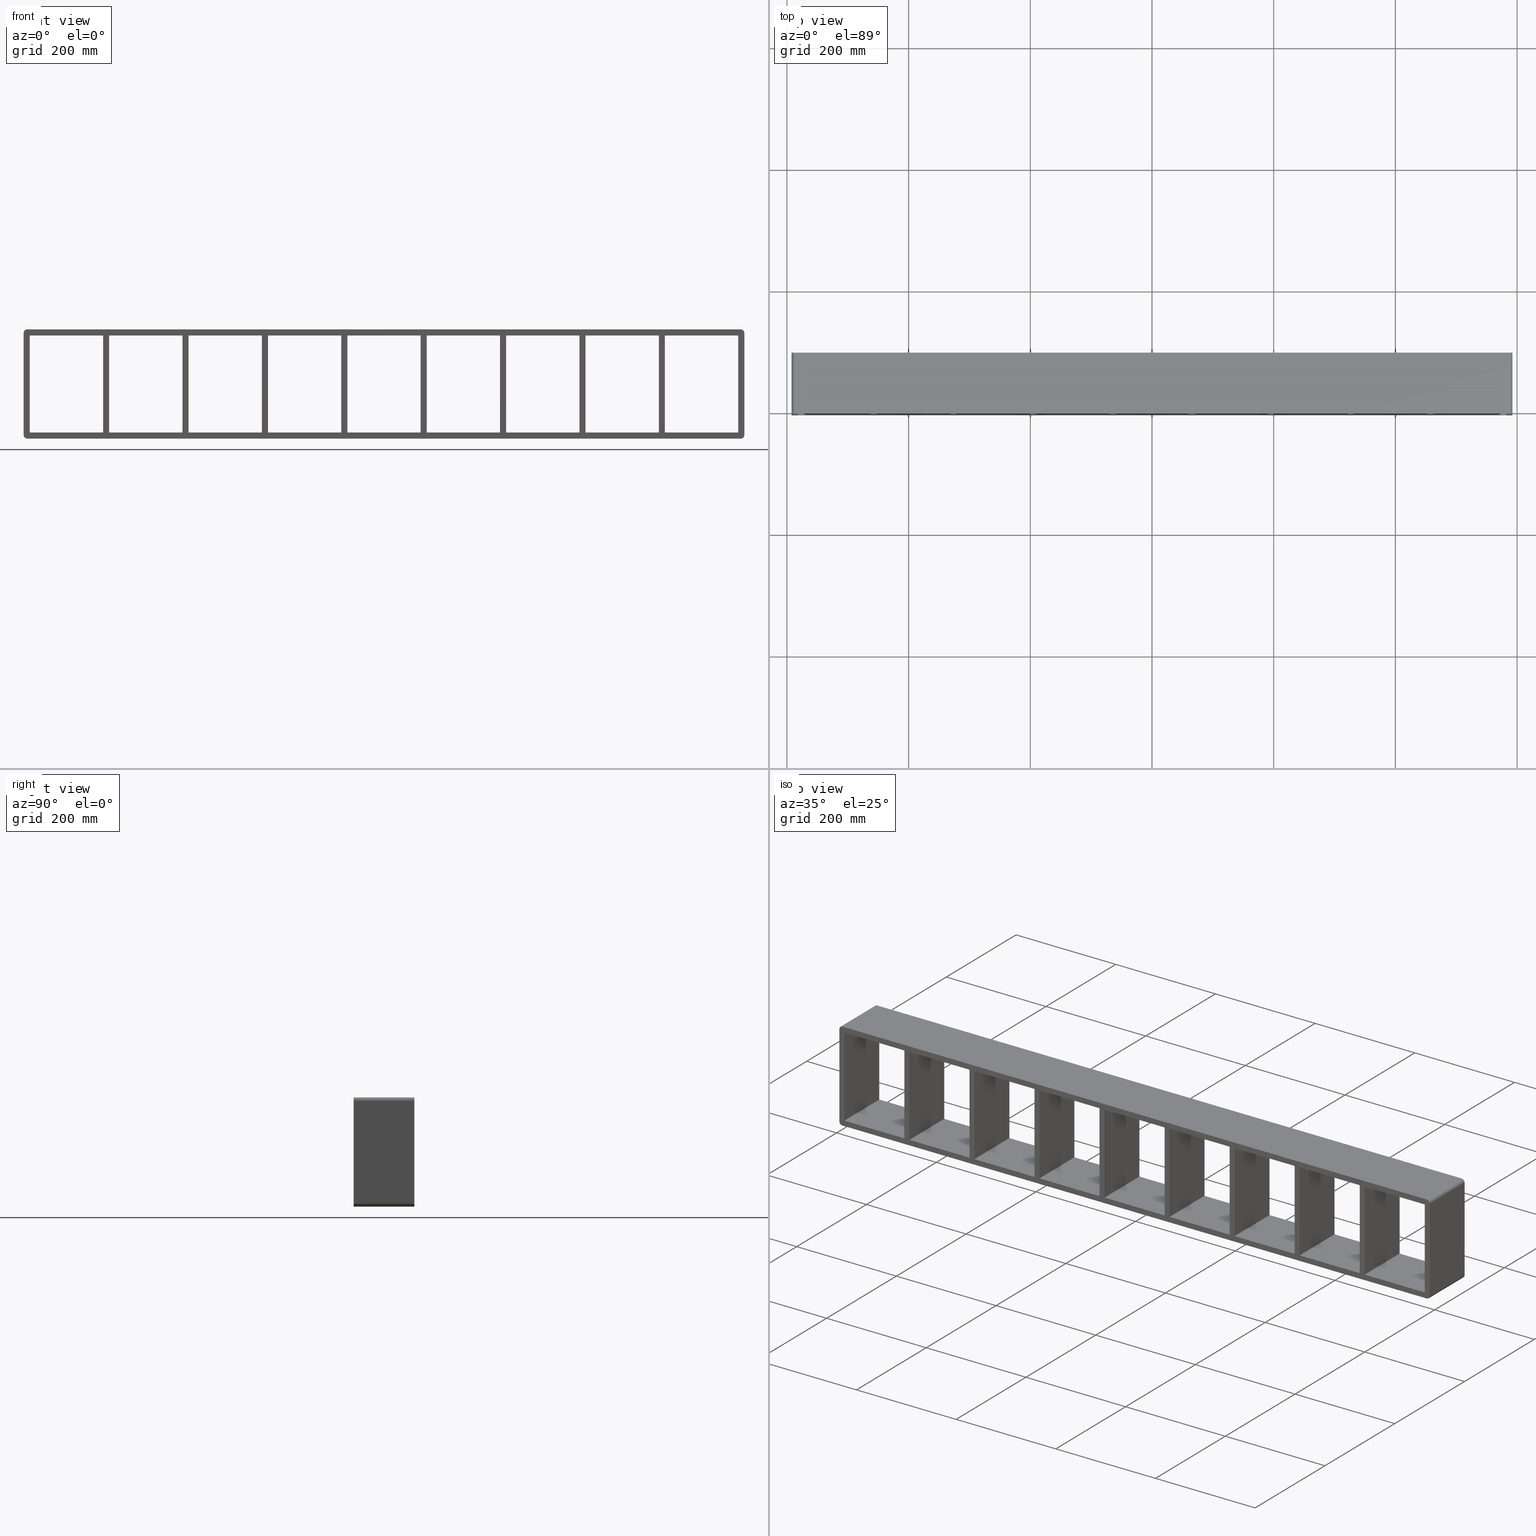
[diagram: canonical four-view strip — front | top / right | iso, engineering-drawing reading convention]
A machine part, canonical four-view strip (front | top / right | iso — engineering-drawing reading convention). The complete STEP part file that produces these views, byte-faithful:
ISO-10303-21;
HEADER;
/****************************************************************
 * Generated by software with PDElib inside                    *
 * PDElib Version v51a, created Wed 11/30/2011                  *
 * ITI Transcendata (http://www.transcendata.com/)              *
 ****************************************************************/
FILE_DESCRIPTION((''),'2;1');
FILE_NAME('C:\\RoxtecConfigurator\\CreatedFiles\\STEP\\SK4X9.stp','2013-01-29T19:00:14',(''),(''),'Autodesk Inventor 2013','Autodesk Inventor 2013','');
FILE_SCHEMA(('AUTOMOTIVE_DESIGN { 1 0 10303 214 1 1 1 1 }'));
ENDSEC;
DATA;
#5=APPLICATION_CONTEXT('automotive design');
#6=APPLICATION_PROTOCOL_DEFINITION('International Standard','automotive_design',2001,#5);
#7=PRODUCT_CONTEXT('',#5,'mechanical');
#8=PRODUCT('roxtec S_SF_G','roxtec S_SF_G',$,(#7));
#9=PRODUCT_RELATED_PRODUCT_CATEGORY('part',$,(#8));
#10=PRODUCT_DEFINITION_FORMATION('',$,#8);
#11=PRODUCT_DEFINITION_CONTEXT('part definition',#5,'design');
#12=PRODUCT_DEFINITION('',$,#10,#11);
#18=(NAMED_UNIT(*)PLANE_ANGLE_UNIT()SI_UNIT($,.RADIAN.));
#19=DIMENSIONAL_EXPONENTS(0.0,0.0,0.0,0.0,0.0,0.0,0.0);
#20=PLANE_ANGLE_MEASURE_WITH_UNIT(PLANE_ANGLE_MEASURE(0.0174532925),#18);
#24=(CONVERSION_BASED_UNIT('DEGREE',#20)NAMED_UNIT(#19)PLANE_ANGLE_UNIT());
#28=(NAMED_UNIT(*)SI_UNIT($,.STERADIAN.)SOLID_ANGLE_UNIT());
#32=(LENGTH_UNIT()NAMED_UNIT(*)SI_UNIT(.MILLI.,.METRE.));
#34=UNCERTAINTY_MEASURE_WITH_UNIT(LENGTH_MEASURE(0.01),#32,'DISTANCE_ACCURACY_VALUE','');
#36=(GEOMETRIC_REPRESENTATION_CONTEXT(3)GLOBAL_UNCERTAINTY_ASSIGNED_CONTEXT((#34))GLOBAL_UNIT_ASSIGNED_CONTEXT((#24,#28,#32))REPRESENTATION_CONTEXT('None','None'));
#37=AXIS2_PLACEMENT_3D('',#38,#39,#40);
#38=CARTESIAN_POINT('',(0.0,0.0,0.0));
#39=DIRECTION('',(0.0,0.0,1.0));
#40=DIRECTION('',(1.0,0.0,0.0));
#41=SHAPE_REPRESENTATION('',(#37),#36);
#42=PRODUCT_DEFINITION_SHAPE('','',#12);
#43=SHAPE_DEFINITION_REPRESENTATION(#42,#41);
#49=(NAMED_UNIT(*)PLANE_ANGLE_UNIT()SI_UNIT($,.RADIAN.));
#50=DIMENSIONAL_EXPONENTS(0.0,0.0,0.0,0.0,0.0,0.0,0.0);
#51=PLANE_ANGLE_MEASURE_WITH_UNIT(PLANE_ANGLE_MEASURE(0.0174532925),#49);
#55=(CONVERSION_BASED_UNIT('DEGREE',#51)NAMED_UNIT(#50)PLANE_ANGLE_UNIT());
#59=(NAMED_UNIT(*)SI_UNIT($,.STERADIAN.)SOLID_ANGLE_UNIT());
#63=(LENGTH_UNIT()NAMED_UNIT(*)SI_UNIT(.MILLI.,.METRE.));
#65=UNCERTAINTY_MEASURE_WITH_UNIT(LENGTH_MEASURE(0.000001),#63,'DISTANCE_ACCURACY_VALUE','');
#67=(GEOMETRIC_REPRESENTATION_CONTEXT(3)GLOBAL_UNCERTAINTY_ASSIGNED_CONTEXT((#65))GLOBAL_UNIT_ASSIGNED_CONTEXT((#55,#59,#63))REPRESENTATION_CONTEXT('','3D'));
#68=CARTESIAN_POINT('',(451.74999999998931,-3.0,-79.750000000000014));
#69=DIRECTION('',(-1.0,0.0,0.0));
#70=DIRECTION('',(0.0,0.0,1.0));
#71=AXIS2_PLACEMENT_3D('',#68,#69,#70);
#72=PLANE('',#71);
#73=CARTESIAN_POINT('',(451.74999999998931,-3.0,-79.750000000000014));
#74=VERTEX_POINT('',#73);
#75=CARTESIAN_POINT('',(451.74999999998931,-3.0,79.75));
#76=VERTEX_POINT('',#75);
#77=CARTESIAN_POINT('',(451.74999999998931,-3.0,-79.750000000000014));
#78=DIRECTION('',(0.0,0.0,1.0));
#79=VECTOR('',#78,159.5);
#80=LINE('',#77,#79);
#81=EDGE_CURVE('',#74,#76,#80,.T.);
#82=ORIENTED_EDGE('',*,*,#81,.T.);
#83=CARTESIAN_POINT('',(451.74999999998931,97.0,79.75));
#84=VERTEX_POINT('',#83);
#85=CARTESIAN_POINT('',(451.74999999998931,97.0,79.75));
#86=DIRECTION('',(0.0,-1.0,0.0));
#87=VECTOR('',#86,100.0);
#88=LINE('',#85,#87);
#89=EDGE_CURVE('',#84,#76,#88,.T.);
#90=ORIENTED_EDGE('',*,*,#89,.F.);
#91=CARTESIAN_POINT('',(451.74999999998931,97.0,-79.750000000000014));
#92=VERTEX_POINT('',#91);
#93=CARTESIAN_POINT('',(451.74999999998931,97.0,-79.750000000000014));
#94=DIRECTION('',(0.0,0.0,1.0));
#95=VECTOR('',#94,159.5);
#96=LINE('',#93,#95);
#97=EDGE_CURVE('',#92,#84,#96,.T.);
#98=ORIENTED_EDGE('',*,*,#97,.F.);
#99=CARTESIAN_POINT('',(451.74999999998931,-3.0,-79.750000000000014));
#100=DIRECTION('',(0.0,1.0,0.0));
#101=VECTOR('',#100,100.0);
#102=LINE('',#99,#101);
#103=EDGE_CURVE('',#74,#92,#102,.T.);
#104=ORIENTED_EDGE('',*,*,#103,.F.);
#105=EDGE_LOOP('',(#82,#90,#98,#104));
#106=FACE_OUTER_BOUND('',#105,.T.);
#107=ADVANCED_FACE('',(#106),#72,.T.);
#108=CARTESIAN_POINT('',(461.74999999999375,-3.0,79.75));
#109=DIRECTION('',(1.0,0.0,0.0));
#110=DIRECTION('',(0.0,0.0,-1.0));
#111=AXIS2_PLACEMENT_3D('',#108,#109,#110);
#112=PLANE('',#111);
#113=CARTESIAN_POINT('',(461.74999999999375,-3.0,79.75));
#114=VERTEX_POINT('',#113);
#115=CARTESIAN_POINT('',(461.74999999999375,-3.0,-79.750000000003766));
#116=VERTEX_POINT('',#115);
#117=CARTESIAN_POINT('',(461.74999999999375,-3.0,79.75));
#118=DIRECTION('',(0.0,0.0,-1.0));
#119=VECTOR('',#118,159.50000000000375);
#120=LINE('',#117,#119);
#121=EDGE_CURVE('',#114,#116,#120,.T.);
#122=ORIENTED_EDGE('',*,*,#121,.T.);
#123=CARTESIAN_POINT('',(461.74999999999375,97.0,-79.750000000003766));
#124=VERTEX_POINT('',#123);
#125=CARTESIAN_POINT('',(461.74999999999375,97.0,-79.750000000000014));
#126=DIRECTION('',(0.0,-1.0,0.0));
#127=VECTOR('',#126,100.0);
#128=LINE('',#125,#127);
#129=EDGE_CURVE('',#124,#116,#128,.T.);
#130=ORIENTED_EDGE('',*,*,#129,.F.);
#131=CARTESIAN_POINT('',(461.74999999999375,97.0,79.75));
#132=VERTEX_POINT('',#131);
#133=CARTESIAN_POINT('',(461.74999999999375,97.0,79.75));
#134=DIRECTION('',(0.0,0.0,-1.0));
#135=VECTOR('',#134,159.50000000000375);
#136=LINE('',#133,#135);
#137=EDGE_CURVE('',#132,#124,#136,.T.);
#138=ORIENTED_EDGE('',*,*,#137,.F.);
#139=CARTESIAN_POINT('',(461.74999999999375,-3.0,79.75));
#140=DIRECTION('',(0.0,1.0,0.0));
#141=VECTOR('',#140,100.0);
#142=LINE('',#139,#141);
#143=EDGE_CURVE('',#114,#132,#142,.T.);
#144=ORIENTED_EDGE('',*,*,#143,.F.);
#145=EDGE_LOOP('',(#122,#130,#138,#144));
#146=FACE_OUTER_BOUND('',#145,.T.);
#147=ADVANCED_FACE('',(#146),#112,.T.);
#148=CARTESIAN_POINT('',(321.24999999998931,-3.0,-79.750000000000014));
#149=DIRECTION('',(-1.0,0.0,0.0));
#150=DIRECTION('',(0.0,0.0,1.0));
#151=AXIS2_PLACEMENT_3D('',#148,#149,#150);
#152=PLANE('',#151);
#153=CARTESIAN_POINT('',(321.24999999998931,-3.0,-79.750000000000014));
#154=VERTEX_POINT('',#153);
#155=CARTESIAN_POINT('',(321.24999999998931,-3.0,79.75));
#156=VERTEX_POINT('',#155);
#157=CARTESIAN_POINT('',(321.24999999998931,-3.0,-79.750000000000014));
#158=DIRECTION('',(0.0,0.0,1.0));
#159=VECTOR('',#158,159.5);
#160=LINE('',#157,#159);
#161=EDGE_CURVE('',#154,#156,#160,.T.);
#162=ORIENTED_EDGE('',*,*,#161,.T.);
#163=CARTESIAN_POINT('',(321.24999999998931,97.0,79.75));
#164=VERTEX_POINT('',#163);
#165=CARTESIAN_POINT('',(321.24999999998931,97.0,79.75));
#166=DIRECTION('',(0.0,-1.0,0.0));
#167=VECTOR('',#166,100.0);
#168=LINE('',#165,#167);
#169=EDGE_CURVE('',#164,#156,#168,.T.);
#170=ORIENTED_EDGE('',*,*,#169,.F.);
#171=CARTESIAN_POINT('',(321.24999999998931,97.0,-79.750000000000014));
#172=VERTEX_POINT('',#171);
#173=CARTESIAN_POINT('',(321.24999999998931,97.0,-79.750000000000014));
#174=DIRECTION('',(0.0,0.0,1.0));
#175=VECTOR('',#174,159.5);
#176=LINE('',#173,#175);
#177=EDGE_CURVE('',#172,#164,#176,.T.);
#178=ORIENTED_EDGE('',*,*,#177,.F.);
#179=CARTESIAN_POINT('',(321.24999999998931,-3.0,-79.750000000000014));
#180=DIRECTION('',(0.0,1.0,0.0));
#181=VECTOR('',#180,100.0);
#182=LINE('',#179,#181);
#183=EDGE_CURVE('',#154,#172,#182,.T.);
#184=ORIENTED_EDGE('',*,*,#183,.F.);
#185=EDGE_LOOP('',(#162,#170,#178,#184));
#186=FACE_OUTER_BOUND('',#185,.T.);
#187=ADVANCED_FACE('',(#186),#152,.T.);
#188=CARTESIAN_POINT('',(331.24999999999375,-3.0,79.75));
#189=DIRECTION('',(1.0,0.0,0.0));
#190=DIRECTION('',(0.0,0.0,-1.0));
#191=AXIS2_PLACEMENT_3D('',#188,#189,#190);
#192=PLANE('',#191);
#193=CARTESIAN_POINT('',(331.24999999999375,-3.0,79.75));
#194=VERTEX_POINT('',#193);
#195=CARTESIAN_POINT('',(331.24999999999375,-3.0,-79.750000000003766));
#196=VERTEX_POINT('',#195);
#197=CARTESIAN_POINT('',(331.24999999999375,-3.0,79.75));
#198=DIRECTION('',(0.0,0.0,-1.0));
#199=VECTOR('',#198,159.50000000000375);
#200=LINE('',#197,#199);
#201=EDGE_CURVE('',#194,#196,#200,.T.);
#202=ORIENTED_EDGE('',*,*,#201,.T.);
#203=CARTESIAN_POINT('',(331.24999999999375,97.0,-79.750000000003766));
#204=VERTEX_POINT('',#203);
#205=CARTESIAN_POINT('',(331.24999999999375,97.0,-79.750000000000014));
#206=DIRECTION('',(0.0,-1.0,0.0));
#207=VECTOR('',#206,100.0);
#208=LINE('',#205,#207);
#209=EDGE_CURVE('',#204,#196,#208,.T.);
#210=ORIENTED_EDGE('',*,*,#209,.F.);
#211=CARTESIAN_POINT('',(331.24999999999375,97.0,79.75));
#212=VERTEX_POINT('',#211);
#213=CARTESIAN_POINT('',(331.24999999999375,97.0,79.75));
#214=DIRECTION('',(0.0,0.0,-1.0));
#215=VECTOR('',#214,159.50000000000375);
#216=LINE('',#213,#215);
#217=EDGE_CURVE('',#212,#204,#216,.T.);
#218=ORIENTED_EDGE('',*,*,#217,.F.);
#219=CARTESIAN_POINT('',(331.24999999999375,-3.0,79.75));
#220=DIRECTION('',(0.0,1.0,0.0));
#221=VECTOR('',#220,100.0);
#222=LINE('',#219,#221);
#223=EDGE_CURVE('',#194,#212,#222,.T.);
#224=ORIENTED_EDGE('',*,*,#223,.F.);
#225=EDGE_LOOP('',(#202,#210,#218,#224));
#226=FACE_OUTER_BOUND('',#225,.T.);
#227=ADVANCED_FACE('',(#226),#192,.T.);
#228=CARTESIAN_POINT('',(190.74999999998926,-3.0,-79.750000000000014));
#229=DIRECTION('',(-1.0,0.0,0.0));
#230=DIRECTION('',(0.0,0.0,1.0));
#231=AXIS2_PLACEMENT_3D('',#228,#229,#230);
#232=PLANE('',#231);
#233=CARTESIAN_POINT('',(190.74999999998926,-3.0,-79.750000000000014));
#234=VERTEX_POINT('',#233);
#235=CARTESIAN_POINT('',(190.74999999998926,-3.0,79.75));
#236=VERTEX_POINT('',#235);
#237=CARTESIAN_POINT('',(190.74999999998926,-3.0,-79.750000000000014));
#238=DIRECTION('',(0.0,0.0,1.0));
#239=VECTOR('',#238,159.5);
#240=LINE('',#237,#239);
#241=EDGE_CURVE('',#234,#236,#240,.T.);
#242=ORIENTED_EDGE('',*,*,#241,.T.);
#243=CARTESIAN_POINT('',(190.74999999998926,97.0,79.75));
#244=VERTEX_POINT('',#243);
#245=CARTESIAN_POINT('',(190.74999999998923,97.0,79.75));
#246=DIRECTION('',(0.0,-1.0,0.0));
#247=VECTOR('',#246,100.0);
#248=LINE('',#245,#247);
#249=EDGE_CURVE('',#244,#236,#248,.T.);
#250=ORIENTED_EDGE('',*,*,#249,.F.);
#251=CARTESIAN_POINT('',(190.74999999998926,97.0,-79.750000000000014));
#252=VERTEX_POINT('',#251);
#253=CARTESIAN_POINT('',(190.74999999998926,97.0,-79.750000000000014));
#254=DIRECTION('',(0.0,0.0,1.0));
#255=VECTOR('',#254,159.5);
#256=LINE('',#253,#255);
#257=EDGE_CURVE('',#252,#244,#256,.T.);
#258=ORIENTED_EDGE('',*,*,#257,.F.);
#259=CARTESIAN_POINT('',(190.74999999998923,-3.0,-79.750000000000014));
#260=DIRECTION('',(0.0,1.0,0.0));
#261=VECTOR('',#260,100.0);
#262=LINE('',#259,#261);
#263=EDGE_CURVE('',#234,#252,#262,.T.);
#264=ORIENTED_EDGE('',*,*,#263,.F.);
#265=EDGE_LOOP('',(#242,#250,#258,#264));
#266=FACE_OUTER_BOUND('',#265,.T.);
#267=ADVANCED_FACE('',(#266),#232,.T.);
#268=CARTESIAN_POINT('',(200.74999999999366,-3.0,79.75));
#269=DIRECTION('',(1.0,0.0,0.0));
#270=DIRECTION('',(0.0,0.0,-1.0));
#271=AXIS2_PLACEMENT_3D('',#268,#269,#270);
#272=PLANE('',#271);
#273=CARTESIAN_POINT('',(200.74999999999366,-3.0,79.75));
#274=VERTEX_POINT('',#273);
#275=CARTESIAN_POINT('',(200.74999999999366,-3.0,-79.750000000003766));
#276=VERTEX_POINT('',#275);
#277=CARTESIAN_POINT('',(200.74999999999366,-3.0,79.75));
#278=DIRECTION('',(0.0,0.0,-1.0));
#279=VECTOR('',#278,159.50000000000375);
#280=LINE('',#277,#279);
#281=EDGE_CURVE('',#274,#276,#280,.T.);
#282=ORIENTED_EDGE('',*,*,#281,.T.);
#283=CARTESIAN_POINT('',(200.74999999999366,97.0,-79.750000000003766));
#284=VERTEX_POINT('',#283);
#285=CARTESIAN_POINT('',(200.74999999999363,97.0,-79.750000000000014));
#286=DIRECTION('',(0.0,-1.0,0.0));
#287=VECTOR('',#286,100.0);
#288=LINE('',#285,#287);
#289=EDGE_CURVE('',#284,#276,#288,.T.);
#290=ORIENTED_EDGE('',*,*,#289,.F.);
#291=CARTESIAN_POINT('',(200.74999999999366,97.0,79.75));
#292=VERTEX_POINT('',#291);
#293=CARTESIAN_POINT('',(200.74999999999366,97.0,79.75));
#294=DIRECTION('',(0.0,0.0,-1.0));
#295=VECTOR('',#294,159.50000000000375);
#296=LINE('',#293,#295);
#297=EDGE_CURVE('',#292,#284,#296,.T.);
#298=ORIENTED_EDGE('',*,*,#297,.F.);
#299=CARTESIAN_POINT('',(200.74999999999363,-3.0,79.75));
#300=DIRECTION('',(0.0,1.0,0.0));
#301=VECTOR('',#300,100.0);
#302=LINE('',#299,#301);
#303=EDGE_CURVE('',#274,#292,#302,.T.);
#304=ORIENTED_EDGE('',*,*,#303,.F.);
#305=EDGE_LOOP('',(#282,#290,#298,#304));
#306=FACE_OUTER_BOUND('',#305,.T.);
#307=ADVANCED_FACE('',(#306),#272,.T.);
#308=CARTESIAN_POINT('',(60.249999999989292,-3.0,-79.750000000000014));
#309=DIRECTION('',(-1.0,0.0,0.0));
#310=DIRECTION('',(0.0,0.0,1.0));
#311=AXIS2_PLACEMENT_3D('',#308,#309,#310);
#312=PLANE('',#311);
#313=CARTESIAN_POINT('',(60.249999999989292,-3.0,-79.750000000000014));
#314=VERTEX_POINT('',#313);
#315=CARTESIAN_POINT('',(60.249999999989292,-3.0,79.75));
#316=VERTEX_POINT('',#315);
#317=CARTESIAN_POINT('',(60.249999999989292,-3.0,-79.750000000000014));
#318=DIRECTION('',(0.0,0.0,1.0));
#319=VECTOR('',#318,159.5);
#320=LINE('',#317,#319);
#321=EDGE_CURVE('',#314,#316,#320,.T.);
#322=ORIENTED_EDGE('',*,*,#321,.T.);
#323=CARTESIAN_POINT('',(60.249999999989292,97.0,79.75));
#324=VERTEX_POINT('',#323);
#325=CARTESIAN_POINT('',(60.249999999989257,97.0,79.75));
#326=DIRECTION('',(0.0,-1.0,0.0));
#327=VECTOR('',#326,100.0);
#328=LINE('',#325,#327);
#329=EDGE_CURVE('',#324,#316,#328,.T.);
#330=ORIENTED_EDGE('',*,*,#329,.F.);
#331=CARTESIAN_POINT('',(60.249999999989292,97.0,-79.750000000000014));
#332=VERTEX_POINT('',#331);
#333=CARTESIAN_POINT('',(60.249999999989292,97.0,-79.750000000000014));
#334=DIRECTION('',(0.0,0.0,1.0));
#335=VECTOR('',#334,159.5);
#336=LINE('',#333,#335);
#337=EDGE_CURVE('',#332,#324,#336,.T.);
#338=ORIENTED_EDGE('',*,*,#337,.F.);
#339=CARTESIAN_POINT('',(60.249999999989257,-3.0,-79.750000000000014));
#340=DIRECTION('',(0.0,1.0,0.0));
#341=VECTOR('',#340,100.0);
#342=LINE('',#339,#341);
#343=EDGE_CURVE('',#314,#332,#342,.T.);
#344=ORIENTED_EDGE('',*,*,#343,.F.);
#345=EDGE_LOOP('',(#322,#330,#338,#344));
#346=FACE_OUTER_BOUND('',#345,.T.);
#347=ADVANCED_FACE('',(#346),#312,.T.);
#348=CARTESIAN_POINT('',(70.24999999999369,-3.0,79.75));
#349=DIRECTION('',(1.0,0.0,0.0));
#350=DIRECTION('',(0.0,0.0,-1.0));
#351=AXIS2_PLACEMENT_3D('',#348,#349,#350);
#352=PLANE('',#351);
#353=CARTESIAN_POINT('',(70.24999999999369,-3.0,79.75));
#354=VERTEX_POINT('',#353);
#355=CARTESIAN_POINT('',(70.24999999999369,-3.0,-79.750000000003766));
#356=VERTEX_POINT('',#355);
#357=CARTESIAN_POINT('',(70.24999999999369,-3.0,79.75));
#358=DIRECTION('',(0.0,0.0,-1.0));
#359=VECTOR('',#358,159.50000000000375);
#360=LINE('',#357,#359);
#361=EDGE_CURVE('',#354,#356,#360,.T.);
#362=ORIENTED_EDGE('',*,*,#361,.T.);
#363=CARTESIAN_POINT('',(70.24999999999369,97.0,-79.750000000003766));
#364=VERTEX_POINT('',#363);
#365=CARTESIAN_POINT('',(70.249999999993662,97.0,-79.750000000000014));
#366=DIRECTION('',(0.0,-1.0,0.0));
#367=VECTOR('',#366,100.0);
#368=LINE('',#365,#367);
#369=EDGE_CURVE('',#364,#356,#368,.T.);
#370=ORIENTED_EDGE('',*,*,#369,.F.);
#371=CARTESIAN_POINT('',(70.24999999999369,97.0,79.75));
#372=VERTEX_POINT('',#371);
#373=CARTESIAN_POINT('',(70.24999999999369,97.0,79.75));
#374=DIRECTION('',(0.0,0.0,-1.0));
#375=VECTOR('',#374,159.50000000000375);
#376=LINE('',#373,#375);
#377=EDGE_CURVE('',#372,#364,#376,.T.);
#378=ORIENTED_EDGE('',*,*,#377,.F.);
#379=CARTESIAN_POINT('',(70.249999999993662,-3.0,79.75));
#380=DIRECTION('',(0.0,1.0,0.0));
#381=VECTOR('',#380,100.0);
#382=LINE('',#379,#381);
#383=EDGE_CURVE('',#354,#372,#382,.T.);
#384=ORIENTED_EDGE('',*,*,#383,.F.);
#385=EDGE_LOOP('',(#362,#370,#378,#384));
#386=FACE_OUTER_BOUND('',#385,.T.);
#387=ADVANCED_FACE('',(#386),#352,.T.);
#388=CARTESIAN_POINT('',(-70.250000000010715,-3.0,-79.750000000000014));
#389=DIRECTION('',(-1.0,0.0,0.0));
#390=DIRECTION('',(0.0,0.0,1.0));
#391=AXIS2_PLACEMENT_3D('',#388,#389,#390);
#392=PLANE('',#391);
#393=CARTESIAN_POINT('',(-70.250000000010715,-3.0,-79.750000000000014));
#394=VERTEX_POINT('',#393);
#395=CARTESIAN_POINT('',(-70.250000000010715,-3.0,79.75));
#396=VERTEX_POINT('',#395);
#397=CARTESIAN_POINT('',(-70.250000000010715,-3.0,-79.750000000000014));
#398=DIRECTION('',(0.0,0.0,1.0));
#399=VECTOR('',#398,159.5);
#400=LINE('',#397,#399);
#401=EDGE_CURVE('',#394,#396,#400,.T.);
#402=ORIENTED_EDGE('',*,*,#401,.T.);
#403=CARTESIAN_POINT('',(-70.250000000010715,97.0,79.75));
#404=VERTEX_POINT('',#403);
#405=CARTESIAN_POINT('',(-70.250000000010715,97.0,79.75));
#406=DIRECTION('',(0.0,-1.0,0.0));
#407=VECTOR('',#406,100.0);
#408=LINE('',#405,#407);
#409=EDGE_CURVE('',#404,#396,#408,.T.);
#410=ORIENTED_EDGE('',*,*,#409,.F.);
#411=CARTESIAN_POINT('',(-70.250000000010715,97.0,-79.750000000000014));
#412=VERTEX_POINT('',#411);
#413=CARTESIAN_POINT('',(-70.250000000010715,97.0,-79.750000000000014));
#414=DIRECTION('',(0.0,0.0,1.0));
#415=VECTOR('',#414,159.5);
#416=LINE('',#413,#415);
#417=EDGE_CURVE('',#412,#404,#416,.T.);
#418=ORIENTED_EDGE('',*,*,#417,.F.);
#419=CARTESIAN_POINT('',(-70.250000000010715,-3.0,-79.750000000000014));
#420=DIRECTION('',(0.0,1.0,0.0));
#421=VECTOR('',#420,100.0);
#422=LINE('',#419,#421);
#423=EDGE_CURVE('',#394,#412,#422,.T.);
#424=ORIENTED_EDGE('',*,*,#423,.F.);
#425=EDGE_LOOP('',(#402,#410,#418,#424));
#426=FACE_OUTER_BOUND('',#425,.T.);
#427=ADVANCED_FACE('',(#426),#392,.T.);
#428=CARTESIAN_POINT('',(-60.25000000000631,-3.0,79.75));
#429=DIRECTION('',(1.0,0.0,0.0));
#430=DIRECTION('',(0.0,0.0,-1.0));
#431=AXIS2_PLACEMENT_3D('',#428,#429,#430);
#432=PLANE('',#431);
#433=CARTESIAN_POINT('',(-60.25000000000631,-3.0,79.75));
#434=VERTEX_POINT('',#433);
#435=CARTESIAN_POINT('',(-60.25000000000631,-3.0,-79.750000000003766));
#436=VERTEX_POINT('',#435);
#437=CARTESIAN_POINT('',(-60.25000000000631,-3.0,79.75));
#438=DIRECTION('',(0.0,0.0,-1.0));
#439=VECTOR('',#438,159.50000000000375);
#440=LINE('',#437,#439);
#441=EDGE_CURVE('',#434,#436,#440,.T.);
#442=ORIENTED_EDGE('',*,*,#441,.T.);
#443=CARTESIAN_POINT('',(-60.25000000000631,97.0,-79.750000000003766));
#444=VERTEX_POINT('',#443);
#445=CARTESIAN_POINT('',(-60.25000000000631,97.0,-79.750000000000014));
#446=DIRECTION('',(0.0,-1.0,0.0));
#447=VECTOR('',#446,100.0);
#448=LINE('',#445,#447);
#449=EDGE_CURVE('',#444,#436,#448,.T.);
#450=ORIENTED_EDGE('',*,*,#449,.F.);
#451=CARTESIAN_POINT('',(-60.25000000000631,97.0,79.75));
#452=VERTEX_POINT('',#451);
#453=CARTESIAN_POINT('',(-60.25000000000631,97.0,79.75));
#454=DIRECTION('',(0.0,0.0,-1.0));
#455=VECTOR('',#454,159.50000000000375);
#456=LINE('',#453,#455);
#457=EDGE_CURVE('',#452,#444,#456,.T.);
#458=ORIENTED_EDGE('',*,*,#457,.F.);
#459=CARTESIAN_POINT('',(-60.25000000000631,-3.0,79.75));
#460=DIRECTION('',(0.0,1.0,0.0));
#461=VECTOR('',#460,100.0);
#462=LINE('',#459,#461);
#463=EDGE_CURVE('',#434,#452,#462,.T.);
#464=ORIENTED_EDGE('',*,*,#463,.F.);
#465=EDGE_LOOP('',(#442,#450,#458,#464));
#466=FACE_OUTER_BOUND('',#465,.T.);
#467=ADVANCED_FACE('',(#466),#432,.T.);
#468=CARTESIAN_POINT('',(-200.7500000000108,-3.0,-79.750000000000014));
#469=DIRECTION('',(-1.0,0.0,0.0));
#470=DIRECTION('',(0.0,0.0,1.0));
#471=AXIS2_PLACEMENT_3D('',#468,#469,#470);
#472=PLANE('',#471);
#473=CARTESIAN_POINT('',(-200.7500000000108,-3.0,-79.750000000000014));
#474=VERTEX_POINT('',#473);
#475=CARTESIAN_POINT('',(-200.7500000000108,-3.0,79.75));
#476=VERTEX_POINT('',#475);
#477=CARTESIAN_POINT('',(-200.7500000000108,-3.0,-79.750000000000014));
#478=DIRECTION('',(0.0,0.0,1.0));
#479=VECTOR('',#478,159.5);
#480=LINE('',#477,#479);
#481=EDGE_CURVE('',#474,#476,#480,.T.);
#482=ORIENTED_EDGE('',*,*,#481,.T.);
#483=CARTESIAN_POINT('',(-200.7500000000108,97.0,79.75));
#484=VERTEX_POINT('',#483);
#485=CARTESIAN_POINT('',(-200.75000000001083,97.0,79.75));
#486=DIRECTION('',(0.0,-1.0,0.0));
#487=VECTOR('',#486,100.0);
#488=LINE('',#485,#487);
#489=EDGE_CURVE('',#484,#476,#488,.T.);
#490=ORIENTED_EDGE('',*,*,#489,.F.);
#491=CARTESIAN_POINT('',(-200.7500000000108,97.0,-79.750000000000014));
#492=VERTEX_POINT('',#491);
#493=CARTESIAN_POINT('',(-200.7500000000108,97.0,-79.750000000000014));
#494=DIRECTION('',(0.0,0.0,1.0));
#495=VECTOR('',#494,159.5);
#496=LINE('',#493,#495);
#497=EDGE_CURVE('',#492,#484,#496,.T.);
#498=ORIENTED_EDGE('',*,*,#497,.F.);
#499=CARTESIAN_POINT('',(-200.75000000001083,-3.0,-79.750000000000014));
#500=DIRECTION('',(0.0,1.0,0.0));
#501=VECTOR('',#500,100.0);
#502=LINE('',#499,#501);
#503=EDGE_CURVE('',#474,#492,#502,.T.);
#504=ORIENTED_EDGE('',*,*,#503,.F.);
#505=EDGE_LOOP('',(#482,#490,#498,#504));
#506=FACE_OUTER_BOUND('',#505,.T.);
#507=ADVANCED_FACE('',(#506),#472,.T.);
#508=CARTESIAN_POINT('',(-190.75000000000639,-3.0,79.75));
#509=DIRECTION('',(1.0,0.0,0.0));
#510=DIRECTION('',(0.0,0.0,-1.0));
#511=AXIS2_PLACEMENT_3D('',#508,#509,#510);
#512=PLANE('',#511);
#513=CARTESIAN_POINT('',(-190.75000000000639,-3.0,79.75));
#514=VERTEX_POINT('',#513);
#515=CARTESIAN_POINT('',(-190.75000000000639,-3.0,-79.750000000003766));
#516=VERTEX_POINT('',#515);
#517=CARTESIAN_POINT('',(-190.75000000000639,-3.0,79.75));
#518=DIRECTION('',(0.0,0.0,-1.0));
#519=VECTOR('',#518,159.50000000000375);
#520=LINE('',#517,#519);
#521=EDGE_CURVE('',#514,#516,#520,.T.);
#522=ORIENTED_EDGE('',*,*,#521,.T.);
#523=CARTESIAN_POINT('',(-190.75000000000639,97.0,-79.750000000003766));
#524=VERTEX_POINT('',#523);
#525=CARTESIAN_POINT('',(-190.75000000000642,97.0,-79.750000000000014));
#526=DIRECTION('',(0.0,-1.0,0.0));
#527=VECTOR('',#526,100.0);
#528=LINE('',#525,#527);
#529=EDGE_CURVE('',#524,#516,#528,.T.);
#530=ORIENTED_EDGE('',*,*,#529,.F.);
#531=CARTESIAN_POINT('',(-190.75000000000639,97.0,79.75));
#532=VERTEX_POINT('',#531);
#533=CARTESIAN_POINT('',(-190.75000000000639,97.0,79.75));
#534=DIRECTION('',(0.0,0.0,-1.0));
#535=VECTOR('',#534,159.50000000000375);
#536=LINE('',#533,#535);
#537=EDGE_CURVE('',#532,#524,#536,.T.);
#538=ORIENTED_EDGE('',*,*,#537,.F.);
#539=CARTESIAN_POINT('',(-190.75000000000642,-3.0,79.75));
#540=DIRECTION('',(0.0,1.0,0.0));
#541=VECTOR('',#540,100.0);
#542=LINE('',#539,#541);
#543=EDGE_CURVE('',#514,#532,#542,.T.);
#544=ORIENTED_EDGE('',*,*,#543,.F.);
#545=EDGE_LOOP('',(#522,#530,#538,#544));
#546=FACE_OUTER_BOUND('',#545,.T.);
#547=ADVANCED_FACE('',(#546),#512,.T.);
#548=CARTESIAN_POINT('',(-331.2500000000108,-3.0,-79.750000000000014));
#549=DIRECTION('',(-1.0,0.0,0.0));
#550=DIRECTION('',(0.0,0.0,1.0));
#551=AXIS2_PLACEMENT_3D('',#548,#549,#550);
#552=PLANE('',#551);
#553=CARTESIAN_POINT('',(-331.2500000000108,-3.0,-79.750000000000014));
#554=VERTEX_POINT('',#553);
#555=CARTESIAN_POINT('',(-331.2500000000108,-3.0,79.75));
#556=VERTEX_POINT('',#555);
#557=CARTESIAN_POINT('',(-331.2500000000108,-3.0,-79.750000000000014));
#558=DIRECTION('',(0.0,0.0,1.0));
#559=VECTOR('',#558,159.5);
#560=LINE('',#557,#559);
#561=EDGE_CURVE('',#554,#556,#560,.T.);
#562=ORIENTED_EDGE('',*,*,#561,.T.);
#563=CARTESIAN_POINT('',(-331.2500000000108,97.0,79.75));
#564=VERTEX_POINT('',#563);
#565=CARTESIAN_POINT('',(-331.2500000000108,97.0,79.75));
#566=DIRECTION('',(0.0,-1.0,0.0));
#567=VECTOR('',#566,100.0);
#568=LINE('',#565,#567);
#569=EDGE_CURVE('',#564,#556,#568,.T.);
#570=ORIENTED_EDGE('',*,*,#569,.F.);
#571=CARTESIAN_POINT('',(-331.2500000000108,97.0,-79.750000000000014));
#572=VERTEX_POINT('',#571);
#573=CARTESIAN_POINT('',(-331.2500000000108,97.0,-79.750000000000014));
#574=DIRECTION('',(0.0,0.0,1.0));
#575=VECTOR('',#574,159.5);
#576=LINE('',#573,#575);
#577=EDGE_CURVE('',#572,#564,#576,.T.);
#578=ORIENTED_EDGE('',*,*,#577,.F.);
#579=CARTESIAN_POINT('',(-331.2500000000108,-3.0,-79.750000000000014));
#580=DIRECTION('',(0.0,1.0,0.0));
#581=VECTOR('',#580,100.0);
#582=LINE('',#579,#581);
#583=EDGE_CURVE('',#554,#572,#582,.T.);
#584=ORIENTED_EDGE('',*,*,#583,.F.);
#585=EDGE_LOOP('',(#562,#570,#578,#584));
#586=FACE_OUTER_BOUND('',#585,.T.);
#587=ADVANCED_FACE('',(#586),#552,.T.);
#588=CARTESIAN_POINT('',(-321.25000000000637,-3.0,79.75));
#589=DIRECTION('',(1.0,0.0,0.0));
#590=DIRECTION('',(0.0,0.0,-1.0));
#591=AXIS2_PLACEMENT_3D('',#588,#589,#590);
#592=PLANE('',#591);
#593=CARTESIAN_POINT('',(-321.25000000000637,-3.0,79.75));
#594=VERTEX_POINT('',#593);
#595=CARTESIAN_POINT('',(-321.25000000000637,-3.0,-79.750000000003766));
#596=VERTEX_POINT('',#595);
#597=CARTESIAN_POINT('',(-321.25000000000637,-3.0,79.75));
#598=DIRECTION('',(0.0,0.0,-1.0));
#599=VECTOR('',#598,159.50000000000375);
#600=LINE('',#597,#599);
#601=EDGE_CURVE('',#594,#596,#600,.T.);
#602=ORIENTED_EDGE('',*,*,#601,.T.);
#603=CARTESIAN_POINT('',(-321.25000000000637,97.0,-79.750000000003766));
#604=VERTEX_POINT('',#603);
#605=CARTESIAN_POINT('',(-321.25000000000637,97.0,-79.750000000000014));
#606=DIRECTION('',(0.0,-1.0,0.0));
#607=VECTOR('',#606,100.0);
#608=LINE('',#605,#607);
#609=EDGE_CURVE('',#604,#596,#608,.T.);
#610=ORIENTED_EDGE('',*,*,#609,.F.);
#611=CARTESIAN_POINT('',(-321.25000000000637,97.0,79.75));
#612=VERTEX_POINT('',#611);
#613=CARTESIAN_POINT('',(-321.25000000000637,97.0,79.75));
#614=DIRECTION('',(0.0,0.0,-1.0));
#615=VECTOR('',#614,159.50000000000375);
#616=LINE('',#613,#615);
#617=EDGE_CURVE('',#612,#604,#616,.T.);
#618=ORIENTED_EDGE('',*,*,#617,.F.);
#619=CARTESIAN_POINT('',(-321.25000000000637,-3.0,79.75));
#620=DIRECTION('',(0.0,1.0,0.0));
#621=VECTOR('',#620,100.0);
#622=LINE('',#619,#621);
#623=EDGE_CURVE('',#594,#612,#622,.T.);
#624=ORIENTED_EDGE('',*,*,#623,.F.);
#625=EDGE_LOOP('',(#602,#610,#618,#624));
#626=FACE_OUTER_BOUND('',#625,.T.);
#627=ADVANCED_FACE('',(#626),#592,.T.);
#628=CARTESIAN_POINT('',(582.25,0.0,-79.750000000000014));
#629=DIRECTION('',(0.0,0.0,-1.0));
#630=DIRECTION('',(-1.0,0.0,0.0));
#631=AXIS2_PLACEMENT_3D('',#628,#629,#630);
#632=PLANE('',#631);
#633=ORIENTED_EDGE('',*,*,#583,.T.);
#634=CARTESIAN_POINT('',(-451.75000000000637,97.0,-79.750000000003766));
#635=VERTEX_POINT('',#634);
#636=CARTESIAN_POINT('',(-451.75000000000637,97.0,-79.750000000000014));
#637=DIRECTION('',(1.0,0.0,0.0));
#638=VECTOR('',#637,120.49999999999557);
#639=LINE('',#636,#638);
#640=EDGE_CURVE('',#635,#572,#639,.T.);
#641=ORIENTED_EDGE('',*,*,#640,.F.);
#642=CARTESIAN_POINT('',(-451.75000000000637,-3.0,-79.750000000003766));
#643=VERTEX_POINT('',#642);
#644=CARTESIAN_POINT('',(-451.75000000000637,97.0,-79.750000000000014));
#645=DIRECTION('',(0.0,-1.0,0.0));
#646=VECTOR('',#645,100.0);
#647=LINE('',#644,#646);
#648=EDGE_CURVE('',#635,#643,#647,.T.);
#649=ORIENTED_EDGE('',*,*,#648,.T.);
#650=CARTESIAN_POINT('',(-331.2500000000108,-3.0,-79.750000000000014));
#651=DIRECTION('',(-1.0,0.0,0.0));
#652=VECTOR('',#651,120.49999999999557);
#653=LINE('',#650,#652);
#654=EDGE_CURVE('',#554,#643,#653,.T.);
#655=ORIENTED_EDGE('',*,*,#654,.F.);
#656=EDGE_LOOP('',(#633,#641,#649,#655));
#657=FACE_OUTER_BOUND('',#656,.T.);
#658=ADVANCED_FACE('',(#657),#632,.F.);
#659=CARTESIAN_POINT('',(582.25,0.0,-79.750000000000014));
#660=DIRECTION('',(0.0,0.0,-1.0));
#661=DIRECTION('',(-1.0,0.0,0.0));
#662=AXIS2_PLACEMENT_3D('',#659,#660,#661);
#663=PLANE('',#662);
#664=ORIENTED_EDGE('',*,*,#503,.T.);
#665=CARTESIAN_POINT('',(-321.25000000000637,97.0,-79.750000000000014));
#666=DIRECTION('',(1.0,0.0,0.0));
#667=VECTOR('',#666,120.49999999999557);
#668=LINE('',#665,#667);
#669=EDGE_CURVE('',#604,#492,#668,.T.);
#670=ORIENTED_EDGE('',*,*,#669,.F.);
#671=ORIENTED_EDGE('',*,*,#609,.T.);
#672=CARTESIAN_POINT('',(-200.7500000000108,-3.0,-79.750000000000014));
#673=DIRECTION('',(-1.0,0.0,0.0));
#674=VECTOR('',#673,120.49999999999557);
#675=LINE('',#672,#674);
#676=EDGE_CURVE('',#474,#596,#675,.T.);
#677=ORIENTED_EDGE('',*,*,#676,.F.);
#678=EDGE_LOOP('',(#664,#670,#671,#677));
#679=FACE_OUTER_BOUND('',#678,.T.);
#680=ADVANCED_FACE('',(#679),#663,.F.);
#681=CARTESIAN_POINT('',(582.25,0.0,-79.750000000000014));
#682=DIRECTION('',(0.0,0.0,-1.0));
#683=DIRECTION('',(-1.0,0.0,0.0));
#684=AXIS2_PLACEMENT_3D('',#681,#682,#683);
#685=PLANE('',#684);
#686=ORIENTED_EDGE('',*,*,#423,.T.);
#687=CARTESIAN_POINT('',(-190.75000000000637,97.0,-79.750000000000014));
#688=DIRECTION('',(1.0,0.0,0.0));
#689=VECTOR('',#688,120.49999999999568);
#690=LINE('',#687,#689);
#691=EDGE_CURVE('',#524,#412,#690,.T.);
#692=ORIENTED_EDGE('',*,*,#691,.F.);
#693=ORIENTED_EDGE('',*,*,#529,.T.);
#694=CARTESIAN_POINT('',(-70.250000000010687,-3.0,-79.750000000000014));
#695=DIRECTION('',(-1.0,0.0,0.0));
#696=VECTOR('',#695,120.49999999999568);
#697=LINE('',#694,#696);
#698=EDGE_CURVE('',#394,#516,#697,.T.);
#699=ORIENTED_EDGE('',*,*,#698,.F.);
#700=EDGE_LOOP('',(#686,#692,#693,#699));
#701=FACE_OUTER_BOUND('',#700,.T.);
#702=ADVANCED_FACE('',(#701),#685,.F.);
#703=CARTESIAN_POINT('',(582.25,0.0,-79.750000000000014));
#704=DIRECTION('',(0.0,0.0,-1.0));
#705=DIRECTION('',(-1.0,0.0,0.0));
#706=AXIS2_PLACEMENT_3D('',#703,#704,#705);
#707=PLANE('',#706);
#708=ORIENTED_EDGE('',*,*,#343,.T.);
#709=CARTESIAN_POINT('',(-60.250000000006253,97.0,-79.750000000000014));
#710=DIRECTION('',(1.0,0.0,0.0));
#711=VECTOR('',#710,120.49999999999554);
#712=LINE('',#709,#711);
#713=EDGE_CURVE('',#444,#332,#712,.T.);
#714=ORIENTED_EDGE('',*,*,#713,.F.);
#715=ORIENTED_EDGE('',*,*,#449,.T.);
#716=CARTESIAN_POINT('',(60.249999999989285,-3.0,-79.750000000000014));
#717=DIRECTION('',(-1.0,0.0,0.0));
#718=VECTOR('',#717,120.49999999999554);
#719=LINE('',#716,#718);
#720=EDGE_CURVE('',#314,#436,#719,.T.);
#721=ORIENTED_EDGE('',*,*,#720,.F.);
#722=EDGE_LOOP('',(#708,#714,#715,#721));
#723=FACE_OUTER_BOUND('',#722,.T.);
#724=ADVANCED_FACE('',(#723),#707,.F.);
#725=CARTESIAN_POINT('',(582.25,0.0,-79.750000000000014));
#726=DIRECTION('',(0.0,0.0,-1.0));
#727=DIRECTION('',(-1.0,0.0,0.0));
#728=AXIS2_PLACEMENT_3D('',#725,#726,#727);
#729=PLANE('',#728);
#730=ORIENTED_EDGE('',*,*,#263,.T.);
#731=CARTESIAN_POINT('',(70.24999999999369,97.0,-79.750000000000014));
#732=DIRECTION('',(1.0,0.0,0.0));
#733=VECTOR('',#732,120.49999999999557);
#734=LINE('',#731,#733);
#735=EDGE_CURVE('',#364,#252,#734,.T.);
#736=ORIENTED_EDGE('',*,*,#735,.F.);
#737=ORIENTED_EDGE('',*,*,#369,.T.);
#738=CARTESIAN_POINT('',(190.74999999998926,-3.0,-79.750000000000014));
#739=DIRECTION('',(-1.0,0.0,0.0));
#740=VECTOR('',#739,120.49999999999557);
#741=LINE('',#738,#740);
#742=EDGE_CURVE('',#234,#356,#741,.T.);
#743=ORIENTED_EDGE('',*,*,#742,.F.);
#744=EDGE_LOOP('',(#730,#736,#737,#743));
#745=FACE_OUTER_BOUND('',#744,.T.);
#746=ADVANCED_FACE('',(#745),#729,.F.);
#747=CARTESIAN_POINT('',(582.25,0.0,-79.750000000000014));
#748=DIRECTION('',(0.0,0.0,-1.0));
#749=DIRECTION('',(-1.0,0.0,0.0));
#750=AXIS2_PLACEMENT_3D('',#747,#748,#749);
#751=PLANE('',#750);
#752=ORIENTED_EDGE('',*,*,#183,.T.);
#753=CARTESIAN_POINT('',(200.74999999999366,97.0,-79.750000000000014));
#754=DIRECTION('',(1.0,0.0,0.0));
#755=VECTOR('',#754,120.49999999999565);
#756=LINE('',#753,#755);
#757=EDGE_CURVE('',#284,#172,#756,.T.);
#758=ORIENTED_EDGE('',*,*,#757,.F.);
#759=ORIENTED_EDGE('',*,*,#289,.T.);
#760=CARTESIAN_POINT('',(321.24999999998931,-3.0,-79.750000000000014));
#761=DIRECTION('',(-1.0,0.0,0.0));
#762=VECTOR('',#761,120.49999999999565);
#763=LINE('',#760,#762);
#764=EDGE_CURVE('',#154,#276,#763,.T.);
#765=ORIENTED_EDGE('',*,*,#764,.F.);
#766=EDGE_LOOP('',(#752,#758,#759,#765));
#767=FACE_OUTER_BOUND('',#766,.T.);
#768=ADVANCED_FACE('',(#767),#751,.F.);
#769=CARTESIAN_POINT('',(582.25,0.0,-79.750000000000014));
#770=DIRECTION('',(0.0,0.0,-1.0));
#771=DIRECTION('',(-1.0,0.0,0.0));
#772=AXIS2_PLACEMENT_3D('',#769,#770,#771);
#773=PLANE('',#772);
#774=ORIENTED_EDGE('',*,*,#103,.T.);
#775=CARTESIAN_POINT('',(331.24999999999375,97.0,-79.750000000000014));
#776=DIRECTION('',(1.0,0.0,0.0));
#777=VECTOR('',#776,120.49999999999557);
#778=LINE('',#775,#777);
#779=EDGE_CURVE('',#204,#92,#778,.T.);
#780=ORIENTED_EDGE('',*,*,#779,.F.);
#781=ORIENTED_EDGE('',*,*,#209,.T.);
#782=CARTESIAN_POINT('',(451.74999999998931,-3.0,-79.750000000000014));
#783=DIRECTION('',(-1.0,0.0,0.0));
#784=VECTOR('',#783,120.49999999999557);
#785=LINE('',#782,#784);
#786=EDGE_CURVE('',#74,#196,#785,.T.);
#787=ORIENTED_EDGE('',*,*,#786,.F.);
#788=EDGE_LOOP('',(#774,#780,#781,#787));
#789=FACE_OUTER_BOUND('',#788,.T.);
#790=ADVANCED_FACE('',(#789),#773,.F.);
#791=CARTESIAN_POINT('',(582.25,0.0,-79.750000000000014));
#792=DIRECTION('',(0.0,0.0,-1.0));
#793=DIRECTION('',(-1.0,0.0,0.0));
#794=AXIS2_PLACEMENT_3D('',#791,#792,#793);
#795=PLANE('',#794);
#796=ORIENTED_EDGE('',*,*,#129,.T.);
#797=CARTESIAN_POINT('',(582.25,-3.0,-79.750000000000014));
#798=VERTEX_POINT('',#797);
#799=CARTESIAN_POINT('',(582.25,-3.0,-79.750000000000014));
#800=DIRECTION('',(-1.0,0.0,0.0));
#801=VECTOR('',#800,120.50000000000625);
#802=LINE('',#799,#801);
#803=EDGE_CURVE('',#798,#116,#802,.T.);
#804=ORIENTED_EDGE('',*,*,#803,.F.);
#805=CARTESIAN_POINT('',(582.25,97.0,-79.750000000000014));
#806=VERTEX_POINT('',#805);
#807=CARTESIAN_POINT('',(582.25,97.0,-79.750000000000014));
#808=DIRECTION('',(0.0,-1.0,0.0));
#809=VECTOR('',#808,100.0);
#810=LINE('',#807,#809);
#811=EDGE_CURVE('',#806,#798,#810,.T.);
#812=ORIENTED_EDGE('',*,*,#811,.F.);
#813=CARTESIAN_POINT('',(461.74999999999375,97.0,-79.750000000000014));
#814=DIRECTION('',(1.0,0.0,0.0));
#815=VECTOR('',#814,120.50000000000625);
#816=LINE('',#813,#815);
#817=EDGE_CURVE('',#124,#806,#816,.T.);
#818=ORIENTED_EDGE('',*,*,#817,.F.);
#819=EDGE_LOOP('',(#796,#804,#812,#818));
#820=FACE_OUTER_BOUND('',#819,.T.);
#821=ADVANCED_FACE('',(#820),#795,.F.);
#822=CARTESIAN_POINT('',(-582.25,0.0,79.75));
#823=DIRECTION('',(0.0,0.0,1.0));
#824=DIRECTION('',(1.0,0.0,0.0));
#825=AXIS2_PLACEMENT_3D('',#822,#823,#824);
#826=PLANE('',#825);
#827=ORIENTED_EDGE('',*,*,#569,.T.);
#828=CARTESIAN_POINT('',(-451.75000000000637,-3.0,79.75));
#829=VERTEX_POINT('',#828);
#830=CARTESIAN_POINT('',(-451.75000000000637,-3.0,79.75));
#831=DIRECTION('',(1.0,0.0,0.0));
#832=VECTOR('',#831,120.49999999999557);
#833=LINE('',#830,#832);
#834=EDGE_CURVE('',#829,#556,#833,.T.);
#835=ORIENTED_EDGE('',*,*,#834,.F.);
#836=CARTESIAN_POINT('',(-451.75000000000637,97.0,79.75));
#837=VERTEX_POINT('',#836);
#838=CARTESIAN_POINT('',(-451.75000000000637,-3.0,79.75));
#839=DIRECTION('',(0.0,1.0,0.0));
#840=VECTOR('',#839,100.0);
#841=LINE('',#838,#840);
#842=EDGE_CURVE('',#829,#837,#841,.T.);
#843=ORIENTED_EDGE('',*,*,#842,.T.);
#844=CARTESIAN_POINT('',(-331.2500000000108,97.0,79.75));
#845=DIRECTION('',(-1.0,0.0,0.0));
#846=VECTOR('',#845,120.49999999999557);
#847=LINE('',#844,#846);
#848=EDGE_CURVE('',#564,#837,#847,.T.);
#849=ORIENTED_EDGE('',*,*,#848,.F.);
#850=EDGE_LOOP('',(#827,#835,#843,#849));
#851=FACE_OUTER_BOUND('',#850,.T.);
#852=ADVANCED_FACE('',(#851),#826,.F.);
#853=CARTESIAN_POINT('',(-582.25,0.0,79.75));
#854=DIRECTION('',(0.0,0.0,1.0));
#855=DIRECTION('',(1.0,0.0,0.0));
#856=AXIS2_PLACEMENT_3D('',#853,#854,#855);
#857=PLANE('',#856);
#858=ORIENTED_EDGE('',*,*,#489,.T.);
#859=CARTESIAN_POINT('',(-321.25000000000642,-3.0,79.75));
#860=DIRECTION('',(1.0,0.0,0.0));
#861=VECTOR('',#860,120.49999999999562);
#862=LINE('',#859,#861);
#863=EDGE_CURVE('',#594,#476,#862,.T.);
#864=ORIENTED_EDGE('',*,*,#863,.F.);
#865=ORIENTED_EDGE('',*,*,#623,.T.);
#866=CARTESIAN_POINT('',(-200.7500000000108,97.0,79.75));
#867=DIRECTION('',(-1.0,0.0,0.0));
#868=VECTOR('',#867,120.49999999999562);
#869=LINE('',#866,#868);
#870=EDGE_CURVE('',#484,#612,#869,.T.);
#871=ORIENTED_EDGE('',*,*,#870,.F.);
#872=EDGE_LOOP('',(#858,#864,#865,#871));
#873=FACE_OUTER_BOUND('',#872,.T.);
#874=ADVANCED_FACE('',(#873),#857,.F.);
#875=CARTESIAN_POINT('',(-582.25,0.0,79.75));
#876=DIRECTION('',(0.0,0.0,1.0));
#877=DIRECTION('',(1.0,0.0,0.0));
#878=AXIS2_PLACEMENT_3D('',#875,#876,#877);
#879=PLANE('',#878);
#880=ORIENTED_EDGE('',*,*,#409,.T.);
#881=CARTESIAN_POINT('',(-190.75000000000639,-3.0,79.75));
#882=DIRECTION('',(1.0,0.0,0.0));
#883=VECTOR('',#882,120.49999999999568);
#884=LINE('',#881,#883);
#885=EDGE_CURVE('',#514,#396,#884,.T.);
#886=ORIENTED_EDGE('',*,*,#885,.F.);
#887=ORIENTED_EDGE('',*,*,#543,.T.);
#888=CARTESIAN_POINT('',(-70.250000000010715,97.0,79.75));
#889=DIRECTION('',(-1.0,0.0,0.0));
#890=VECTOR('',#889,120.49999999999568);
#891=LINE('',#888,#890);
#892=EDGE_CURVE('',#404,#532,#891,.T.);
#893=ORIENTED_EDGE('',*,*,#892,.F.);
#894=EDGE_LOOP('',(#880,#886,#887,#893));
#895=FACE_OUTER_BOUND('',#894,.T.);
#896=ADVANCED_FACE('',(#895),#879,.F.);
#897=CARTESIAN_POINT('',(-582.25,0.0,79.75));
#898=DIRECTION('',(0.0,0.0,1.0));
#899=DIRECTION('',(1.0,0.0,0.0));
#900=AXIS2_PLACEMENT_3D('',#897,#898,#899);
#901=PLANE('',#900);
#902=ORIENTED_EDGE('',*,*,#329,.T.);
#903=CARTESIAN_POINT('',(-60.25000000000631,-3.0,79.75));
#904=DIRECTION('',(1.0,0.0,0.0));
#905=VECTOR('',#904,120.49999999999557);
#906=LINE('',#903,#905);
#907=EDGE_CURVE('',#434,#316,#906,.T.);
#908=ORIENTED_EDGE('',*,*,#907,.F.);
#909=ORIENTED_EDGE('',*,*,#463,.T.);
#910=CARTESIAN_POINT('',(60.249999999989257,97.0,79.75));
#911=DIRECTION('',(-1.0,0.0,0.0));
#912=VECTOR('',#911,120.49999999999557);
#913=LINE('',#910,#912);
#914=EDGE_CURVE('',#324,#452,#913,.T.);
#915=ORIENTED_EDGE('',*,*,#914,.F.);
#916=EDGE_LOOP('',(#902,#908,#909,#915));
#917=FACE_OUTER_BOUND('',#916,.T.);
#918=ADVANCED_FACE('',(#917),#901,.F.);
#919=CARTESIAN_POINT('',(-582.25,0.0,79.75));
#920=DIRECTION('',(0.0,0.0,1.0));
#921=DIRECTION('',(1.0,0.0,0.0));
#922=AXIS2_PLACEMENT_3D('',#919,#920,#921);
#923=PLANE('',#922);
#924=ORIENTED_EDGE('',*,*,#249,.T.);
#925=CARTESIAN_POINT('',(70.24999999999369,-3.0,79.75));
#926=DIRECTION('',(1.0,0.0,0.0));
#927=VECTOR('',#926,120.49999999999557);
#928=LINE('',#925,#927);
#929=EDGE_CURVE('',#354,#236,#928,.T.);
#930=ORIENTED_EDGE('',*,*,#929,.F.);
#931=ORIENTED_EDGE('',*,*,#383,.T.);
#932=CARTESIAN_POINT('',(190.74999999998926,97.0,79.75));
#933=DIRECTION('',(-1.0,0.0,0.0));
#934=VECTOR('',#933,120.49999999999557);
#935=LINE('',#932,#934);
#936=EDGE_CURVE('',#244,#372,#935,.T.);
#937=ORIENTED_EDGE('',*,*,#936,.F.);
#938=EDGE_LOOP('',(#924,#930,#931,#937));
#939=FACE_OUTER_BOUND('',#938,.T.);
#940=ADVANCED_FACE('',(#939),#923,.F.);
#941=CARTESIAN_POINT('',(-582.25,0.0,79.75));
#942=DIRECTION('',(0.0,0.0,1.0));
#943=DIRECTION('',(1.0,0.0,0.0));
#944=AXIS2_PLACEMENT_3D('',#941,#942,#943);
#945=PLANE('',#944);
#946=ORIENTED_EDGE('',*,*,#169,.T.);
#947=CARTESIAN_POINT('',(200.74999999999369,-3.0,79.75));
#948=DIRECTION('',(1.0,0.0,0.0));
#949=VECTOR('',#948,120.49999999999568);
#950=LINE('',#947,#949);
#951=EDGE_CURVE('',#274,#156,#950,.T.);
#952=ORIENTED_EDGE('',*,*,#951,.F.);
#953=ORIENTED_EDGE('',*,*,#303,.T.);
#954=CARTESIAN_POINT('',(321.24999999998937,97.0,79.75));
#955=DIRECTION('',(-1.0,0.0,0.0));
#956=VECTOR('',#955,120.49999999999568);
#957=LINE('',#954,#956);
#958=EDGE_CURVE('',#164,#292,#957,.T.);
#959=ORIENTED_EDGE('',*,*,#958,.F.);
#960=EDGE_LOOP('',(#946,#952,#953,#959));
#961=FACE_OUTER_BOUND('',#960,.T.);
#962=ADVANCED_FACE('',(#961),#945,.F.);
#963=CARTESIAN_POINT('',(-582.25,0.0,79.75));
#964=DIRECTION('',(0.0,0.0,1.0));
#965=DIRECTION('',(1.0,0.0,0.0));
#966=AXIS2_PLACEMENT_3D('',#963,#964,#965);
#967=PLANE('',#966);
#968=ORIENTED_EDGE('',*,*,#143,.T.);
#969=CARTESIAN_POINT('',(582.25,97.0,79.75));
#970=VERTEX_POINT('',#969);
#971=CARTESIAN_POINT('',(582.25,97.0,79.75));
#972=DIRECTION('',(-1.0,0.0,0.0));
#973=VECTOR('',#972,120.50000000000631);
#974=LINE('',#971,#973);
#975=EDGE_CURVE('',#970,#132,#974,.T.);
#976=ORIENTED_EDGE('',*,*,#975,.F.);
#977=CARTESIAN_POINT('',(582.25,-3.0,79.75));
#978=VERTEX_POINT('',#977);
#979=CARTESIAN_POINT('',(582.25,-3.0,79.75));
#980=DIRECTION('',(0.0,1.0,0.0));
#981=VECTOR('',#980,100.0);
#982=LINE('',#979,#981);
#983=EDGE_CURVE('',#978,#970,#982,.T.);
#984=ORIENTED_EDGE('',*,*,#983,.F.);
#985=CARTESIAN_POINT('',(461.74999999999369,-3.0,79.75));
#986=DIRECTION('',(1.0,0.0,0.0));
#987=VECTOR('',#986,120.50000000000631);
#988=LINE('',#985,#987);
#989=EDGE_CURVE('',#114,#978,#988,.T.);
#990=ORIENTED_EDGE('',*,*,#989,.F.);
#991=EDGE_LOOP('',(#968,#976,#984,#990));
#992=FACE_OUTER_BOUND('',#991,.T.);
#993=ADVANCED_FACE('',(#992),#967,.F.);
#994=CARTESIAN_POINT('',(-582.25,0.0,79.75));
#995=DIRECTION('',(0.0,0.0,1.0));
#996=DIRECTION('',(1.0,0.0,0.0));
#997=AXIS2_PLACEMENT_3D('',#994,#995,#996);
#998=PLANE('',#997);
#999=ORIENTED_EDGE('',*,*,#89,.T.);
#1000=CARTESIAN_POINT('',(331.2499999999938,-3.0,79.75));
#1001=DIRECTION('',(1.0,0.0,0.0));
#1002=VECTOR('',#1001,120.49999999999557);
#1003=LINE('',#1000,#1002);
#1004=EDGE_CURVE('',#194,#76,#1003,.T.);
#1005=ORIENTED_EDGE('',*,*,#1004,.F.);
#1006=ORIENTED_EDGE('',*,*,#223,.T.);
#1007=CARTESIAN_POINT('',(451.74999999998937,97.0,79.75));
#1008=DIRECTION('',(-1.0,0.0,0.0));
#1009=VECTOR('',#1008,120.49999999999557);
#1010=LINE('',#1007,#1009);
#1011=EDGE_CURVE('',#84,#212,#1010,.T.);
#1012=ORIENTED_EDGE('',*,*,#1011,.F.);
#1013=EDGE_LOOP('',(#999,#1005,#1006,#1012));
#1014=FACE_OUTER_BOUND('',#1013,.T.);
#1015=ADVANCED_FACE('',(#1014),#998,.F.);
#1016=CARTESIAN_POINT('',(-461.7500000000108,-3.0,-79.750000000000014));
#1017=DIRECTION('',(-1.0,0.0,0.0));
#1018=DIRECTION('',(0.0,0.0,1.0));
#1019=AXIS2_PLACEMENT_3D('',#1016,#1017,#1018);
#1020=PLANE('',#1019);
#1021=CARTESIAN_POINT('',(-461.7500000000108,-3.0,-79.750000000000014));
#1022=VERTEX_POINT('',#1021);
#1023=CARTESIAN_POINT('',(-461.7500000000108,-3.0,79.75));
#1024=VERTEX_POINT('',#1023);
#1025=CARTESIAN_POINT('',(-461.7500000000108,-3.0,-79.750000000000014));
#1026=DIRECTION('',(0.0,0.0,1.0));
#1027=VECTOR('',#1026,159.5);
#1028=LINE('',#1025,#1027);
#1029=EDGE_CURVE('',#1022,#1024,#1028,.T.);
#1030=ORIENTED_EDGE('',*,*,#1029,.T.);
#1031=CARTESIAN_POINT('',(-461.7500000000108,97.0,79.75));
#1032=VERTEX_POINT('',#1031);
#1033=CARTESIAN_POINT('',(-461.7500000000108,97.0,79.75));
#1034=DIRECTION('',(0.0,-1.0,0.0));
#1035=VECTOR('',#1034,100.0);
#1036=LINE('',#1033,#1035);
#1037=EDGE_CURVE('',#1032,#1024,#1036,.T.);
#1038=ORIENTED_EDGE('',*,*,#1037,.F.);
#1039=CARTESIAN_POINT('',(-461.7500000000108,97.0,-79.750000000000014));
#1040=VERTEX_POINT('',#1039);
#1041=CARTESIAN_POINT('',(-461.7500000000108,97.0,-79.750000000000014));
#1042=DIRECTION('',(0.0,0.0,1.0));
#1043=VECTOR('',#1042,159.5);
#1044=LINE('',#1041,#1043);
#1045=EDGE_CURVE('',#1040,#1032,#1044,.T.);
#1046=ORIENTED_EDGE('',*,*,#1045,.F.);
#1047=CARTESIAN_POINT('',(-461.7500000000108,-3.0,-79.750000000000014));
#1048=DIRECTION('',(0.0,1.0,0.0));
#1049=VECTOR('',#1048,100.0);
#1050=LINE('',#1047,#1049);
#1051=EDGE_CURVE('',#1022,#1040,#1050,.T.);
#1052=ORIENTED_EDGE('',*,*,#1051,.F.);
#1053=EDGE_LOOP('',(#1030,#1038,#1046,#1052));
#1054=FACE_OUTER_BOUND('',#1053,.T.);
#1055=ADVANCED_FACE('',(#1054),#1020,.T.);
#1056=CARTESIAN_POINT('',(-451.75000000000637,-3.0,79.75));
#1057=DIRECTION('',(1.0,0.0,0.0));
#1058=DIRECTION('',(0.0,0.0,-1.0));
#1059=AXIS2_PLACEMENT_3D('',#1056,#1057,#1058);
#1060=PLANE('',#1059);
#1061=CARTESIAN_POINT('',(-451.75000000000637,-3.0,79.75));
#1062=DIRECTION('',(0.0,0.0,-1.0));
#1063=VECTOR('',#1062,159.50000000000375);
#1064=LINE('',#1061,#1063);
#1065=EDGE_CURVE('',#829,#643,#1064,.T.);
#1066=ORIENTED_EDGE('',*,*,#1065,.T.);
#1067=ORIENTED_EDGE('',*,*,#648,.F.);
#1068=CARTESIAN_POINT('',(-451.75000000000637,97.0,79.75));
#1069=DIRECTION('',(0.0,0.0,-1.0));
#1070=VECTOR('',#1069,159.50000000000375);
#1071=LINE('',#1068,#1070);
#1072=EDGE_CURVE('',#837,#635,#1071,.T.);
#1073=ORIENTED_EDGE('',*,*,#1072,.F.);
#1074=ORIENTED_EDGE('',*,*,#842,.F.);
#1075=EDGE_LOOP('',(#1066,#1067,#1073,#1074));
#1076=FACE_OUTER_BOUND('',#1075,.T.);
#1077=ADVANCED_FACE('',(#1076),#1060,.T.);
#1078=CARTESIAN_POINT('',(582.25,0.0,-79.750000000000014));
#1079=DIRECTION('',(0.0,0.0,-1.0));
#1080=DIRECTION('',(-1.0,0.0,0.0));
#1081=AXIS2_PLACEMENT_3D('',#1078,#1079,#1080);
#1082=PLANE('',#1081);
#1083=ORIENTED_EDGE('',*,*,#1051,.T.);
#1084=CARTESIAN_POINT('',(-582.25,97.0,-79.750000000000014));
#1085=VERTEX_POINT('',#1084);
#1086=CARTESIAN_POINT('',(-582.24999999999989,97.0,-79.750000000000014));
#1087=DIRECTION('',(1.0,0.0,0.0));
#1088=VECTOR('',#1087,120.4999999999892);
#1089=LINE('',#1086,#1088);
#1090=EDGE_CURVE('',#1085,#1040,#1089,.T.);
#1091=ORIENTED_EDGE('',*,*,#1090,.F.);
#1092=CARTESIAN_POINT('',(-582.25,-3.0,-79.750000000000014));
#1093=VERTEX_POINT('',#1092);
#1094=CARTESIAN_POINT('',(-582.25,-3.0,-79.750000000000014));
#1095=DIRECTION('',(0.0,1.0,0.0));
#1096=VECTOR('',#1095,100.0);
#1097=LINE('',#1094,#1096);
#1098=EDGE_CURVE('',#1093,#1085,#1097,.T.);
#1099=ORIENTED_EDGE('',*,*,#1098,.F.);
#1100=CARTESIAN_POINT('',(-461.75000000001069,-3.0,-79.750000000000014));
#1101=DIRECTION('',(-1.0,0.0,0.0));
#1102=VECTOR('',#1101,120.4999999999892);
#1103=LINE('',#1100,#1102);
#1104=EDGE_CURVE('',#1022,#1093,#1103,.T.);
#1105=ORIENTED_EDGE('',*,*,#1104,.F.);
#1106=EDGE_LOOP('',(#1083,#1091,#1099,#1105));
#1107=FACE_OUTER_BOUND('',#1106,.T.);
#1108=ADVANCED_FACE('',(#1107),#1082,.F.);
#1109=CARTESIAN_POINT('',(-582.25,0.0,79.75));
#1110=DIRECTION('',(0.0,0.0,1.0));
#1111=DIRECTION('',(1.0,0.0,0.0));
#1112=AXIS2_PLACEMENT_3D('',#1109,#1110,#1111);
#1113=PLANE('',#1112);
#1114=ORIENTED_EDGE('',*,*,#1037,.T.);
#1115=CARTESIAN_POINT('',(-582.25,-3.0,79.75));
#1116=VERTEX_POINT('',#1115);
#1117=CARTESIAN_POINT('',(-582.25,-3.0,79.75));
#1118=DIRECTION('',(1.0,0.0,0.0));
#1119=VECTOR('',#1118,120.4999999999892);
#1120=LINE('',#1117,#1119);
#1121=EDGE_CURVE('',#1116,#1024,#1120,.T.);
#1122=ORIENTED_EDGE('',*,*,#1121,.F.);
#1123=CARTESIAN_POINT('',(-582.25,97.0,79.75));
#1124=VERTEX_POINT('',#1123);
#1125=CARTESIAN_POINT('',(-582.25,-3.0,79.75));
#1126=DIRECTION('',(0.0,1.0,0.0));
#1127=VECTOR('',#1126,100.0);
#1128=LINE('',#1125,#1127);
#1129=EDGE_CURVE('',#1116,#1124,#1128,.T.);
#1130=ORIENTED_EDGE('',*,*,#1129,.T.);
#1131=CARTESIAN_POINT('',(-461.7500000000108,97.0,79.75));
#1132=DIRECTION('',(-1.0,0.0,0.0));
#1133=VECTOR('',#1132,120.4999999999892);
#1134=LINE('',#1131,#1133);
#1135=EDGE_CURVE('',#1032,#1124,#1134,.T.);
#1136=ORIENTED_EDGE('',*,*,#1135,.F.);
#1137=EDGE_LOOP('',(#1114,#1122,#1130,#1136));
#1138=FACE_OUTER_BOUND('',#1137,.T.);
#1139=ADVANCED_FACE('',(#1138),#1113,.F.);
#1140=CARTESIAN_POINT('',(582.25,0.0,79.75));
#1141=DIRECTION('',(1.0,0.0,0.0));
#1142=DIRECTION('',(0.0,0.0,-1.0));
#1143=AXIS2_PLACEMENT_3D('',#1140,#1141,#1142);
#1144=PLANE('',#1143);
#1145=ORIENTED_EDGE('',*,*,#811,.T.);
#1146=CARTESIAN_POINT('',(582.25,-3.0,79.75));
#1147=DIRECTION('',(0.0,0.0,-1.0));
#1148=VECTOR('',#1147,159.50000000000003);
#1149=LINE('',#1146,#1148);
#1150=EDGE_CURVE('',#978,#798,#1149,.T.);
#1151=ORIENTED_EDGE('',*,*,#1150,.F.);
#1152=ORIENTED_EDGE('',*,*,#983,.T.);
#1153=CARTESIAN_POINT('',(582.25,97.0,-79.750000000000028));
#1154=DIRECTION('',(0.0,0.0,1.0));
#1155=VECTOR('',#1154,159.50000000000003);
#1156=LINE('',#1153,#1155);
#1157=EDGE_CURVE('',#806,#970,#1156,.T.);
#1158=ORIENTED_EDGE('',*,*,#1157,.F.);
#1159=EDGE_LOOP('',(#1145,#1151,#1152,#1158));
#1160=FACE_OUTER_BOUND('',#1159,.T.);
#1161=ADVANCED_FACE('',(#1160),#1144,.F.);
#1162=CARTESIAN_POINT('',(-582.25,0.0,-79.750000000000014));
#1163=DIRECTION('',(-1.0,0.0,0.0));
#1164=DIRECTION('',(0.0,0.0,1.0));
#1165=AXIS2_PLACEMENT_3D('',#1162,#1163,#1164);
#1166=PLANE('',#1165);
#1167=ORIENTED_EDGE('',*,*,#1129,.F.);
#1168=CARTESIAN_POINT('',(-582.25,-3.0,-79.750000000000014));
#1169=DIRECTION('',(0.0,0.0,1.0));
#1170=VECTOR('',#1169,159.5);
#1171=LINE('',#1168,#1170);
#1172=EDGE_CURVE('',#1093,#1116,#1171,.T.);
#1173=ORIENTED_EDGE('',*,*,#1172,.F.);
#1174=ORIENTED_EDGE('',*,*,#1098,.T.);
#1175=CARTESIAN_POINT('',(-582.25,97.0,79.75));
#1176=DIRECTION('',(0.0,0.0,-1.0));
#1177=VECTOR('',#1176,159.5);
#1178=LINE('',#1175,#1177);
#1179=EDGE_CURVE('',#1124,#1085,#1178,.T.);
#1180=ORIENTED_EDGE('',*,*,#1179,.F.);
#1181=EDGE_LOOP('',(#1167,#1173,#1174,#1180));
#1182=FACE_OUTER_BOUND('',#1181,.T.);
#1183=ADVANCED_FACE('',(#1182),#1166,.F.);
#1184=CARTESIAN_POINT('',(7.516613E-014,-3.0,-1.475775E-016));
#1185=DIRECTION('',(0.0,-1.0,0.0));
#1186=DIRECTION('',(0.0,0.0,-1.0));
#1187=AXIS2_PLACEMENT_3D('',#1184,#1185,#1186);
#1188=PLANE('',#1187);
#1189=CARTESIAN_POINT('',(592.25,-3.0,-83.750000000000014));
#1190=VERTEX_POINT('',#1189);
#1191=CARTESIAN_POINT('',(592.25000000000011,-3.0,83.749999999999986));
#1192=VERTEX_POINT('',#1191);
#1193=CARTESIAN_POINT('',(592.25,-3.0,-83.75));
#1194=DIRECTION('',(0.0,0.0,1.0));
#1195=VECTOR('',#1194,167.5);
#1196=LINE('',#1193,#1195);
#1197=EDGE_CURVE('',#1190,#1192,#1196,.T.);
#1198=ORIENTED_EDGE('',*,*,#1197,.T.);
#1199=CARTESIAN_POINT('',(586.25000000000011,-3.0,89.750000000000014));
#1200=VERTEX_POINT('',#1199);
#1201=CARTESIAN_POINT('',(586.25000000000011,-3.0,83.75));
#1202=DIRECTION('',(0.0,-1.0,0.0));
#1203=DIRECTION('',(0.0,0.0,1.0));
#1204=AXIS2_PLACEMENT_3D('',#1201,#1202,#1203);
#1205=CIRCLE('',#1204,6.000000000000001);
#1206=EDGE_CURVE('',#1192,#1200,#1205,.T.);
#1207=ORIENTED_EDGE('',*,*,#1206,.T.);
#1208=CARTESIAN_POINT('',(-586.25,-3.0,89.750000000000014));
#1209=VERTEX_POINT('',#1208);
#1210=CARTESIAN_POINT('',(586.25000000000023,-3.0,89.750000000000014));
#1211=DIRECTION('',(-1.0,0.0,0.0));
#1212=VECTOR('',#1211,1172.5000000000002);
#1213=LINE('',#1210,#1212);
#1214=EDGE_CURVE('',#1200,#1209,#1213,.T.);
#1215=ORIENTED_EDGE('',*,*,#1214,.T.);
#1216=CARTESIAN_POINT('',(-592.25,-3.0,83.749999999999986));
#1217=VERTEX_POINT('',#1216);
#1218=CARTESIAN_POINT('',(-586.25,-3.0,83.75));
#1219=DIRECTION('',(0.0,-1.0,0.0));
#1220=DIRECTION('',(-1.0,0.0,0.0));
#1221=AXIS2_PLACEMENT_3D('',#1218,#1219,#1220);
#1222=CIRCLE('',#1221,6.000000000000001);
#1223=EDGE_CURVE('',#1209,#1217,#1222,.T.);
#1224=ORIENTED_EDGE('',*,*,#1223,.T.);
#1225=CARTESIAN_POINT('',(-592.25,-3.0,-83.750000000000014));
#1226=VERTEX_POINT('',#1225);
#1227=CARTESIAN_POINT('',(-592.25,-3.0,83.749999999999986));
#1228=DIRECTION('',(0.0,0.0,-1.0));
#1229=VECTOR('',#1228,167.5);
#1230=LINE('',#1227,#1229);
#1231=EDGE_CURVE('',#1217,#1226,#1230,.T.);
#1232=ORIENTED_EDGE('',*,*,#1231,.T.);
#1233=CARTESIAN_POINT('',(-586.25,-3.0,-89.750000000000028));
#1234=VERTEX_POINT('',#1233);
#1235=CARTESIAN_POINT('',(-586.25,-3.0,-83.75));
#1236=DIRECTION('',(0.0,-1.0,0.0));
#1237=DIRECTION('',(0.0,0.0,-1.0));
#1238=AXIS2_PLACEMENT_3D('',#1235,#1236,#1237);
#1239=CIRCLE('',#1238,6.000000000000001);
#1240=EDGE_CURVE('',#1226,#1234,#1239,.T.);
#1241=ORIENTED_EDGE('',*,*,#1240,.T.);
#1242=CARTESIAN_POINT('',(586.25000000000011,-3.0,-89.750000000000028));
#1243=VERTEX_POINT('',#1242);
#1244=CARTESIAN_POINT('',(-586.25000000000011,-3.0,-89.750000000000014));
#1245=DIRECTION('',(1.0,0.0,0.0));
#1246=VECTOR('',#1245,1172.5000000000002);
#1247=LINE('',#1244,#1246);
#1248=EDGE_CURVE('',#1234,#1243,#1247,.T.);
#1249=ORIENTED_EDGE('',*,*,#1248,.T.);
#1250=CARTESIAN_POINT('',(586.25000000000011,-3.0,-83.75));
#1251=DIRECTION('',(0.0,-1.0,0.0));
#1252=DIRECTION('',(1.0,0.0,0.0));
#1253=AXIS2_PLACEMENT_3D('',#1250,#1251,#1252);
#1254=CIRCLE('',#1253,6.000000000000001);
#1255=EDGE_CURVE('',#1243,#1190,#1254,.T.);
#1256=ORIENTED_EDGE('',*,*,#1255,.T.);
#1257=EDGE_LOOP('',(#1198,#1207,#1215,#1224,#1232,#1241,#1249,#1256));
#1258=FACE_OUTER_BOUND('',#1257,.T.);
#1259=ORIENTED_EDGE('',*,*,#786,.T.);
#1260=ORIENTED_EDGE('',*,*,#201,.F.);
#1261=ORIENTED_EDGE('',*,*,#1004,.T.);
#1262=ORIENTED_EDGE('',*,*,#81,.F.);
#1263=EDGE_LOOP('',(#1259,#1260,#1261,#1262));
#1264=FACE_BOUND('',#1263,.T.);
#1265=ORIENTED_EDGE('',*,*,#764,.T.);
#1266=ORIENTED_EDGE('',*,*,#281,.F.);
#1267=ORIENTED_EDGE('',*,*,#951,.T.);
#1268=ORIENTED_EDGE('',*,*,#161,.F.);
#1269=EDGE_LOOP('',(#1265,#1266,#1267,#1268));
#1270=FACE_BOUND('',#1269,.T.);
#1271=ORIENTED_EDGE('',*,*,#742,.T.);
#1272=ORIENTED_EDGE('',*,*,#361,.F.);
#1273=ORIENTED_EDGE('',*,*,#929,.T.);
#1274=ORIENTED_EDGE('',*,*,#241,.F.);
#1275=EDGE_LOOP('',(#1271,#1272,#1273,#1274));
#1276=FACE_BOUND('',#1275,.T.);
#1277=ORIENTED_EDGE('',*,*,#720,.T.);
#1278=ORIENTED_EDGE('',*,*,#441,.F.);
#1279=ORIENTED_EDGE('',*,*,#907,.T.);
#1280=ORIENTED_EDGE('',*,*,#321,.F.);
#1281=EDGE_LOOP('',(#1277,#1278,#1279,#1280));
#1282=FACE_BOUND('',#1281,.T.);
#1283=ORIENTED_EDGE('',*,*,#698,.T.);
#1284=ORIENTED_EDGE('',*,*,#521,.F.);
#1285=ORIENTED_EDGE('',*,*,#885,.T.);
#1286=ORIENTED_EDGE('',*,*,#401,.F.);
#1287=EDGE_LOOP('',(#1283,#1284,#1285,#1286));
#1288=FACE_BOUND('',#1287,.T.);
#1289=ORIENTED_EDGE('',*,*,#676,.T.);
#1290=ORIENTED_EDGE('',*,*,#601,.F.);
#1291=ORIENTED_EDGE('',*,*,#863,.T.);
#1292=ORIENTED_EDGE('',*,*,#481,.F.);
#1293=EDGE_LOOP('',(#1289,#1290,#1291,#1292));
#1294=FACE_BOUND('',#1293,.T.);
#1295=ORIENTED_EDGE('',*,*,#654,.T.);
#1296=ORIENTED_EDGE('',*,*,#1065,.F.);
#1297=ORIENTED_EDGE('',*,*,#834,.T.);
#1298=ORIENTED_EDGE('',*,*,#561,.F.);
#1299=EDGE_LOOP('',(#1295,#1296,#1297,#1298));
#1300=FACE_BOUND('',#1299,.T.);
#1301=ORIENTED_EDGE('',*,*,#1104,.T.);
#1302=ORIENTED_EDGE('',*,*,#1172,.T.);
#1303=ORIENTED_EDGE('',*,*,#1121,.T.);
#1304=ORIENTED_EDGE('',*,*,#1029,.F.);
#1305=EDGE_LOOP('',(#1301,#1302,#1303,#1304));
#1306=FACE_BOUND('',#1305,.T.);
#1307=ORIENTED_EDGE('',*,*,#121,.F.);
#1308=ORIENTED_EDGE('',*,*,#989,.T.);
#1309=ORIENTED_EDGE('',*,*,#1150,.T.);
#1310=ORIENTED_EDGE('',*,*,#803,.T.);
#1311=EDGE_LOOP('',(#1307,#1308,#1309,#1310));
#1312=FACE_BOUND('',#1311,.T.);
#1313=ADVANCED_FACE('',(#1258,#1264,#1270,#1276,#1282,#1288,#1294,#1300,#1306,#1312),#1188,.T.);
#1314=CARTESIAN_POINT('',(586.25000000000011,0.0,83.75));
#1315=DIRECTION('',(0.0,1.0,0.0));
#1316=DIRECTION('',(0.0,0.0,1.0));
#1317=AXIS2_PLACEMENT_3D('',#1314,#1315,#1316);
#1318=CYLINDRICAL_SURFACE('',#1317,6.000000000000001);
#1319=CARTESIAN_POINT('',(592.25000000000011,97.0,83.749999999999986));
#1320=VERTEX_POINT('',#1319);
#1321=CARTESIAN_POINT('',(592.25000000000011,97.0,83.749999999999986));
#1322=DIRECTION('',(0.0,-1.0,0.0));
#1323=VECTOR('',#1322,100.0);
#1324=LINE('',#1321,#1323);
#1325=EDGE_CURVE('',#1320,#1192,#1324,.T.);
#1326=ORIENTED_EDGE('',*,*,#1325,.F.);
#1327=CARTESIAN_POINT('',(586.25000000000011,97.0,89.750000000000014));
#1328=VERTEX_POINT('',#1327);
#1329=CARTESIAN_POINT('',(586.25000000000011,97.0,83.75));
#1330=DIRECTION('',(0.0,1.0,0.0));
#1331=DIRECTION('',(0.0,0.0,1.0));
#1332=AXIS2_PLACEMENT_3D('',#1329,#1330,#1331);
#1333=CIRCLE('',#1332,6.000000000000001);
#1334=EDGE_CURVE('',#1328,#1320,#1333,.T.);
#1335=ORIENTED_EDGE('',*,*,#1334,.F.);
#1336=CARTESIAN_POINT('',(586.25000000000011,-3.0,89.750000000000014));
#1337=DIRECTION('',(0.0,1.0,0.0));
#1338=VECTOR('',#1337,100.0);
#1339=LINE('',#1336,#1338);
#1340=EDGE_CURVE('',#1200,#1328,#1339,.T.);
#1341=ORIENTED_EDGE('',*,*,#1340,.F.);
#1342=ORIENTED_EDGE('',*,*,#1206,.F.);
#1343=EDGE_LOOP('',(#1326,#1335,#1341,#1342));
#1344=FACE_OUTER_BOUND('',#1343,.T.);
#1345=ADVANCED_FACE('',(#1344),#1318,.T.);
#1346=CARTESIAN_POINT('',(-586.25,0.0,89.750000000000014));
#1347=DIRECTION('',(0.0,0.0,1.0));
#1348=DIRECTION('',(1.0,0.0,0.0));
#1349=AXIS2_PLACEMENT_3D('',#1346,#1347,#1348);
#1350=PLANE('',#1349);
#1351=ORIENTED_EDGE('',*,*,#1340,.T.);
#1352=CARTESIAN_POINT('',(-586.25,97.0,89.750000000000014));
#1353=VERTEX_POINT('',#1352);
#1354=CARTESIAN_POINT('',(-586.25,97.0,89.750000000000014));
#1355=DIRECTION('',(1.0,0.0,0.0));
#1356=VECTOR('',#1355,1172.5000000000002);
#1357=LINE('',#1354,#1356);
#1358=EDGE_CURVE('',#1353,#1328,#1357,.T.);
#1359=ORIENTED_EDGE('',*,*,#1358,.F.);
#1360=CARTESIAN_POINT('',(-586.25,-3.0,89.750000000000014));
#1361=DIRECTION('',(0.0,1.0,0.0));
#1362=VECTOR('',#1361,100.0);
#1363=LINE('',#1360,#1362);
#1364=EDGE_CURVE('',#1209,#1353,#1363,.T.);
#1365=ORIENTED_EDGE('',*,*,#1364,.F.);
#1366=ORIENTED_EDGE('',*,*,#1214,.F.);
#1367=EDGE_LOOP('',(#1351,#1359,#1365,#1366));
#1368=FACE_OUTER_BOUND('',#1367,.T.);
#1369=ADVANCED_FACE('',(#1368),#1350,.T.);
#1370=CARTESIAN_POINT('',(-586.25,0.0,83.75));
#1371=DIRECTION('',(0.0,1.0,0.0));
#1372=DIRECTION('',(-1.0,0.0,0.0));
#1373=AXIS2_PLACEMENT_3D('',#1370,#1371,#1372);
#1374=CYLINDRICAL_SURFACE('',#1373,6.000000000000001);
#1375=ORIENTED_EDGE('',*,*,#1364,.T.);
#1376=CARTESIAN_POINT('',(-592.25,97.0,83.749999999999986));
#1377=VERTEX_POINT('',#1376);
#1378=CARTESIAN_POINT('',(-586.25,97.0,83.75));
#1379=DIRECTION('',(0.0,1.0,0.0));
#1380=DIRECTION('',(-1.0,0.0,0.0));
#1381=AXIS2_PLACEMENT_3D('',#1378,#1379,#1380);
#1382=CIRCLE('',#1381,6.000000000000001);
#1383=EDGE_CURVE('',#1377,#1353,#1382,.T.);
#1384=ORIENTED_EDGE('',*,*,#1383,.F.);
#1385=CARTESIAN_POINT('',(-592.25,-3.0,83.749999999999986));
#1386=DIRECTION('',(0.0,1.0,0.0));
#1387=VECTOR('',#1386,100.0);
#1388=LINE('',#1385,#1387);
#1389=EDGE_CURVE('',#1217,#1377,#1388,.T.);
#1390=ORIENTED_EDGE('',*,*,#1389,.F.);
#1391=ORIENTED_EDGE('',*,*,#1223,.F.);
#1392=EDGE_LOOP('',(#1375,#1384,#1390,#1391));
#1393=FACE_OUTER_BOUND('',#1392,.T.);
#1394=ADVANCED_FACE('',(#1393),#1374,.T.);
#1395=CARTESIAN_POINT('',(-592.25,0.0,-83.75));
#1396=DIRECTION('',(-1.0,0.0,0.0));
#1397=DIRECTION('',(0.0,0.0,1.0));
#1398=AXIS2_PLACEMENT_3D('',#1395,#1396,#1397);
#1399=PLANE('',#1398);
#1400=ORIENTED_EDGE('',*,*,#1389,.T.);
#1401=CARTESIAN_POINT('',(-592.25,97.0,-83.750000000000014));
#1402=VERTEX_POINT('',#1401);
#1403=CARTESIAN_POINT('',(-592.25,97.0,-83.75));
#1404=DIRECTION('',(0.0,0.0,1.0));
#1405=VECTOR('',#1404,167.5);
#1406=LINE('',#1403,#1405);
#1407=EDGE_CURVE('',#1402,#1377,#1406,.T.);
#1408=ORIENTED_EDGE('',*,*,#1407,.F.);
#1409=CARTESIAN_POINT('',(-592.25,-3.0,-83.75));
#1410=DIRECTION('',(0.0,1.0,0.0));
#1411=VECTOR('',#1410,100.0);
#1412=LINE('',#1409,#1411);
#1413=EDGE_CURVE('',#1226,#1402,#1412,.T.);
#1414=ORIENTED_EDGE('',*,*,#1413,.F.);
#1415=ORIENTED_EDGE('',*,*,#1231,.F.);
#1416=EDGE_LOOP('',(#1400,#1408,#1414,#1415));
#1417=FACE_OUTER_BOUND('',#1416,.T.);
#1418=ADVANCED_FACE('',(#1417),#1399,.T.);
#1419=CARTESIAN_POINT('',(-586.25,0.0,-83.75));
#1420=DIRECTION('',(0.0,1.0,0.0));
#1421=DIRECTION('',(0.0,0.0,-1.0));
#1422=AXIS2_PLACEMENT_3D('',#1419,#1420,#1421);
#1423=CYLINDRICAL_SURFACE('',#1422,6.000000000000001);
#1424=ORIENTED_EDGE('',*,*,#1413,.T.);
#1425=CARTESIAN_POINT('',(-586.25,97.0,-89.750000000000028));
#1426=VERTEX_POINT('',#1425);
#1427=CARTESIAN_POINT('',(-586.25,97.0,-83.75));
#1428=DIRECTION('',(0.0,1.0,0.0));
#1429=DIRECTION('',(0.0,0.0,-1.0));
#1430=AXIS2_PLACEMENT_3D('',#1427,#1428,#1429);
#1431=CIRCLE('',#1430,6.000000000000001);
#1432=EDGE_CURVE('',#1426,#1402,#1431,.T.);
#1433=ORIENTED_EDGE('',*,*,#1432,.F.);
#1434=CARTESIAN_POINT('',(-586.25,-3.0,-89.750000000000014));
#1435=DIRECTION('',(0.0,1.0,0.0));
#1436=VECTOR('',#1435,100.0);
#1437=LINE('',#1434,#1436);
#1438=EDGE_CURVE('',#1234,#1426,#1437,.T.);
#1439=ORIENTED_EDGE('',*,*,#1438,.F.);
#1440=ORIENTED_EDGE('',*,*,#1240,.F.);
#1441=EDGE_LOOP('',(#1424,#1433,#1439,#1440));
#1442=FACE_OUTER_BOUND('',#1441,.T.);
#1443=ADVANCED_FACE('',(#1442),#1423,.T.);
#1444=CARTESIAN_POINT('',(586.25000000000011,0.0,-89.750000000000014));
#1445=DIRECTION('',(0.0,0.0,-1.0));
#1446=DIRECTION('',(-1.0,0.0,0.0));
#1447=AXIS2_PLACEMENT_3D('',#1444,#1445,#1446);
#1448=PLANE('',#1447);
#1449=ORIENTED_EDGE('',*,*,#1438,.T.);
#1450=CARTESIAN_POINT('',(586.25000000000011,97.0,-89.750000000000028));
#1451=VERTEX_POINT('',#1450);
#1452=CARTESIAN_POINT('',(586.25000000000011,97.0,-89.750000000000014));
#1453=DIRECTION('',(-1.0,0.0,0.0));
#1454=VECTOR('',#1453,1172.5000000000002);
#1455=LINE('',#1452,#1454);
#1456=EDGE_CURVE('',#1451,#1426,#1455,.T.);
#1457=ORIENTED_EDGE('',*,*,#1456,.F.);
#1458=CARTESIAN_POINT('',(586.25000000000011,-3.0,-89.750000000000014));
#1459=DIRECTION('',(0.0,1.0,0.0));
#1460=VECTOR('',#1459,100.0);
#1461=LINE('',#1458,#1460);
#1462=EDGE_CURVE('',#1243,#1451,#1461,.T.);
#1463=ORIENTED_EDGE('',*,*,#1462,.F.);
#1464=ORIENTED_EDGE('',*,*,#1248,.F.);
#1465=EDGE_LOOP('',(#1449,#1457,#1463,#1464));
#1466=FACE_OUTER_BOUND('',#1465,.T.);
#1467=ADVANCED_FACE('',(#1466),#1448,.T.);
#1468=CARTESIAN_POINT('',(586.25000000000011,0.0,-83.75));
#1469=DIRECTION('',(0.0,1.0,0.0));
#1470=DIRECTION('',(1.0,0.0,0.0));
#1471=AXIS2_PLACEMENT_3D('',#1468,#1469,#1470);
#1472=CYLINDRICAL_SURFACE('',#1471,6.000000000000001);
#1473=ORIENTED_EDGE('',*,*,#1462,.T.);
#1474=CARTESIAN_POINT('',(592.25,97.0,-83.750000000000014));
#1475=VERTEX_POINT('',#1474);
#1476=CARTESIAN_POINT('',(586.25000000000011,97.0,-83.75));
#1477=DIRECTION('',(0.0,1.0,0.0));
#1478=DIRECTION('',(1.0,0.0,0.0));
#1479=AXIS2_PLACEMENT_3D('',#1476,#1477,#1478);
#1480=CIRCLE('',#1479,6.000000000000001);
#1481=EDGE_CURVE('',#1475,#1451,#1480,.T.);
#1482=ORIENTED_EDGE('',*,*,#1481,.F.);
#1483=CARTESIAN_POINT('',(592.25,-3.0,-83.75));
#1484=DIRECTION('',(0.0,1.0,0.0));
#1485=VECTOR('',#1484,100.0);
#1486=LINE('',#1483,#1485);
#1487=EDGE_CURVE('',#1190,#1475,#1486,.T.);
#1488=ORIENTED_EDGE('',*,*,#1487,.F.);
#1489=ORIENTED_EDGE('',*,*,#1255,.F.);
#1490=EDGE_LOOP('',(#1473,#1482,#1488,#1489));
#1491=FACE_OUTER_BOUND('',#1490,.T.);
#1492=ADVANCED_FACE('',(#1491),#1472,.T.);
#1493=CARTESIAN_POINT('',(592.25000000000011,0.0,83.749999999999986));
#1494=DIRECTION('',(1.0,0.0,0.0));
#1495=DIRECTION('',(0.0,0.0,-1.0));
#1496=AXIS2_PLACEMENT_3D('',#1493,#1494,#1495);
#1497=PLANE('',#1496);
#1498=ORIENTED_EDGE('',*,*,#1487,.T.);
#1499=CARTESIAN_POINT('',(592.25000000000011,97.0,83.749999999999986));
#1500=DIRECTION('',(0.0,0.0,-1.0));
#1501=VECTOR('',#1500,167.5);
#1502=LINE('',#1499,#1501);
#1503=EDGE_CURVE('',#1320,#1475,#1502,.T.);
#1504=ORIENTED_EDGE('',*,*,#1503,.F.);
#1505=ORIENTED_EDGE('',*,*,#1325,.T.);
#1506=ORIENTED_EDGE('',*,*,#1197,.F.);
#1507=EDGE_LOOP('',(#1498,#1504,#1505,#1506));
#1508=FACE_OUTER_BOUND('',#1507,.T.);
#1509=ADVANCED_FACE('',(#1508),#1497,.T.);
#1510=CARTESIAN_POINT('',(7.516613E-014,97.0,-1.475775E-016));
#1511=DIRECTION('',(0.0,-1.0,0.0));
#1512=DIRECTION('',(0.0,0.0,-1.0));
#1513=AXIS2_PLACEMENT_3D('',#1510,#1511,#1512);
#1514=PLANE('',#1513);
#1515=ORIENTED_EDGE('',*,*,#1503,.T.);
#1516=ORIENTED_EDGE('',*,*,#1481,.T.);
#1517=ORIENTED_EDGE('',*,*,#1456,.T.);
#1518=ORIENTED_EDGE('',*,*,#1432,.T.);
#1519=ORIENTED_EDGE('',*,*,#1407,.T.);
#1520=ORIENTED_EDGE('',*,*,#1383,.T.);
#1521=ORIENTED_EDGE('',*,*,#1358,.T.);
#1522=ORIENTED_EDGE('',*,*,#1334,.T.);
#1523=EDGE_LOOP('',(#1515,#1516,#1517,#1518,#1519,#1520,#1521,#1522));
#1524=FACE_OUTER_BOUND('',#1523,.T.);
#1525=ORIENTED_EDGE('',*,*,#817,.T.);
#1526=ORIENTED_EDGE('',*,*,#1157,.T.);
#1527=ORIENTED_EDGE('',*,*,#975,.T.);
#1528=ORIENTED_EDGE('',*,*,#137,.T.);
#1529=EDGE_LOOP('',(#1525,#1526,#1527,#1528));
#1530=FACE_BOUND('',#1529,.T.);
#1531=ORIENTED_EDGE('',*,*,#97,.T.);
#1532=ORIENTED_EDGE('',*,*,#1011,.T.);
#1533=ORIENTED_EDGE('',*,*,#217,.T.);
#1534=ORIENTED_EDGE('',*,*,#779,.T.);
#1535=EDGE_LOOP('',(#1531,#1532,#1533,#1534));
#1536=FACE_BOUND('',#1535,.T.);
#1537=ORIENTED_EDGE('',*,*,#177,.T.);
#1538=ORIENTED_EDGE('',*,*,#958,.T.);
#1539=ORIENTED_EDGE('',*,*,#297,.T.);
#1540=ORIENTED_EDGE('',*,*,#757,.T.);
#1541=EDGE_LOOP('',(#1537,#1538,#1539,#1540));
#1542=FACE_BOUND('',#1541,.T.);
#1543=ORIENTED_EDGE('',*,*,#257,.T.);
#1544=ORIENTED_EDGE('',*,*,#936,.T.);
#1545=ORIENTED_EDGE('',*,*,#377,.T.);
#1546=ORIENTED_EDGE('',*,*,#735,.T.);
#1547=EDGE_LOOP('',(#1543,#1544,#1545,#1546));
#1548=FACE_BOUND('',#1547,.T.);
#1549=ORIENTED_EDGE('',*,*,#337,.T.);
#1550=ORIENTED_EDGE('',*,*,#914,.T.);
#1551=ORIENTED_EDGE('',*,*,#457,.T.);
#1552=ORIENTED_EDGE('',*,*,#713,.T.);
#1553=EDGE_LOOP('',(#1549,#1550,#1551,#1552));
#1554=FACE_BOUND('',#1553,.T.);
#1555=ORIENTED_EDGE('',*,*,#417,.T.);
#1556=ORIENTED_EDGE('',*,*,#892,.T.);
#1557=ORIENTED_EDGE('',*,*,#537,.T.);
#1558=ORIENTED_EDGE('',*,*,#691,.T.);
#1559=EDGE_LOOP('',(#1555,#1556,#1557,#1558));
#1560=FACE_BOUND('',#1559,.T.);
#1561=ORIENTED_EDGE('',*,*,#497,.T.);
#1562=ORIENTED_EDGE('',*,*,#870,.T.);
#1563=ORIENTED_EDGE('',*,*,#617,.T.);
#1564=ORIENTED_EDGE('',*,*,#669,.T.);
#1565=EDGE_LOOP('',(#1561,#1562,#1563,#1564));
#1566=FACE_BOUND('',#1565,.T.);
#1567=ORIENTED_EDGE('',*,*,#577,.T.);
#1568=ORIENTED_EDGE('',*,*,#848,.T.);
#1569=ORIENTED_EDGE('',*,*,#1072,.T.);
#1570=ORIENTED_EDGE('',*,*,#640,.T.);
#1571=EDGE_LOOP('',(#1567,#1568,#1569,#1570));
#1572=FACE_BOUND('',#1571,.T.);
#1573=ORIENTED_EDGE('',*,*,#1045,.T.);
#1574=ORIENTED_EDGE('',*,*,#1135,.T.);
#1575=ORIENTED_EDGE('',*,*,#1179,.T.);
#1576=ORIENTED_EDGE('',*,*,#1090,.T.);
#1577=EDGE_LOOP('',(#1573,#1574,#1575,#1576));
#1578=FACE_BOUND('',#1577,.T.);
#1579=ADVANCED_FACE('',(#1524,#1530,#1536,#1542,#1548,#1554,#1560,#1566,#1572,#1578),#1514,.F.);
#1580=CLOSED_SHELL('',(#107,#147,#187,#227,#267,#307,#347,#387,#427,#467,#507,#547,#587,#627,#658,#680,#702,#724,#746,#768,#790,#821,#852,#874,#896,#918,#940,#962,#993,#1015,#1055,#1077,#1108,#1139,#1161,#1183,#1313,#1345,#1369,#1394,#1418,#1443,#1467,#1492,#1509,#1579));
#1581=MANIFOLD_SOLID_BREP('Solid1',#1580);
#1582=COLOUR_RGB('Silicon Nitride - Polished',0.800000011920929,0.796078443527222,0.701960802078247);
#1583=FILL_AREA_STYLE_COLOUR('Silicon Nitride - Polished',#1582);
#1584=FILL_AREA_STYLE('Silicon Nitride - Polished',(#1583));
#1585=SURFACE_STYLE_FILL_AREA(#1584);
#1586=SURFACE_SIDE_STYLE('Silicon Nitride - Polished',(#1585));
#1587=SURFACE_STYLE_USAGE(.BOTH.,#1586);
#1588=PRESENTATION_STYLE_ASSIGNMENT((#1587));
#1589=STYLED_ITEM('',(#1588),#1581);
#1590=MECHANICAL_DESIGN_GEOMETRIC_PRESENTATION_REPRESENTATION('',(#1589),#36);
#1591=ADVANCED_BREP_SHAPE_REPRESENTATION('ABSR',(#1581),#36);
#1592=SHAPE_REPRESENTATION_RELATIONSHIP('SRR','None',#1591,#41);
ENDSEC;
END-ISO-10303-21;
